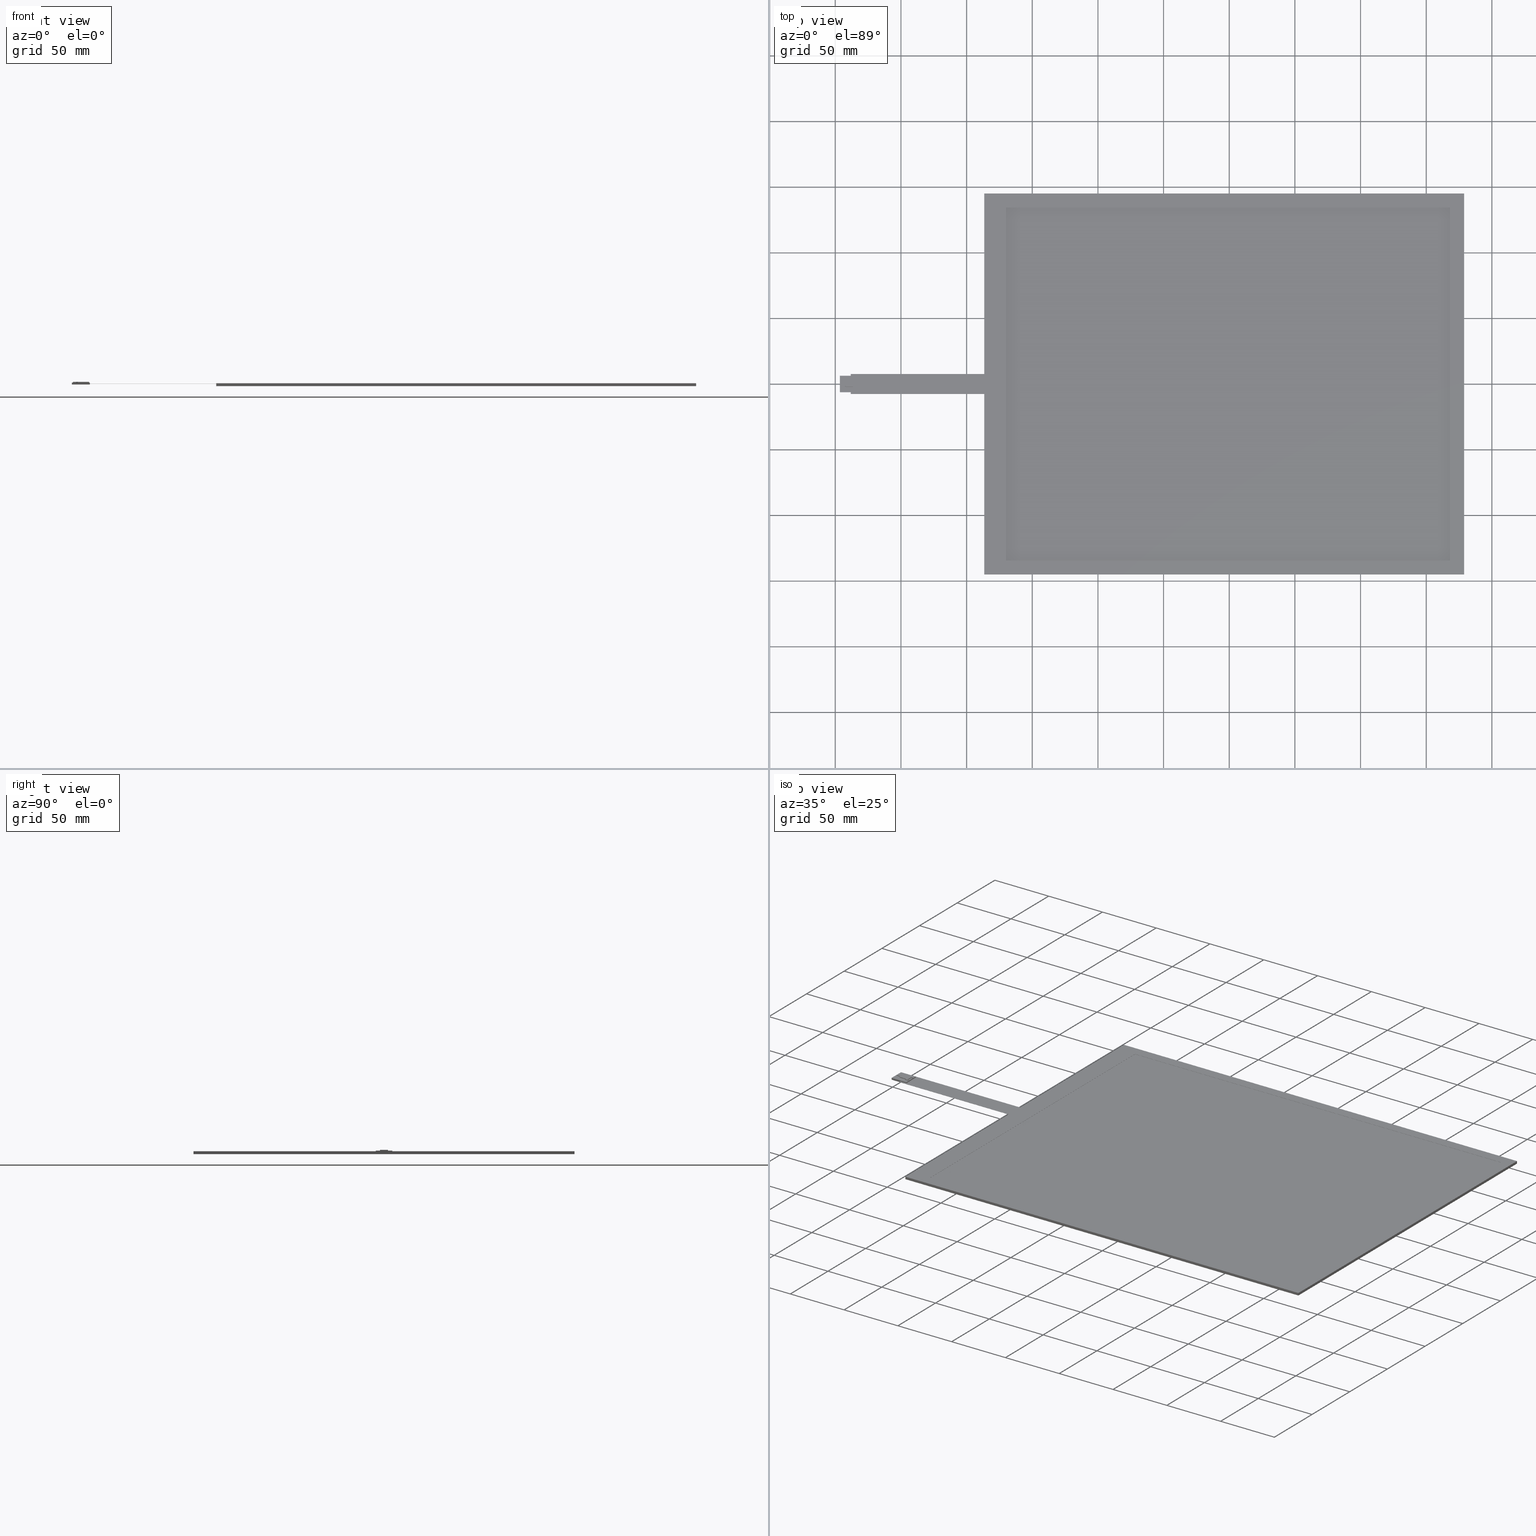
[diagram: canonical four-view strip — front | top / right | iso, engineering-drawing reading convention]
A machine part, canonical four-view strip (front | top / right | iso — engineering-drawing reading convention). The complete STEP part file that produces these views, byte-faithful:
ISO-10303-21;
HEADER;
/* Generated by software containing ST-Developer
 * from STEP Tools, Inc. (www.steptools.com) 
 */

FILE_DESCRIPTION(
/* description */ (''),
/* implementation_level */ '2;1');

FILE_NAME(
/* name */ 
'\\\\172.16.4.5\\\X2\65B06280885390E8\X0\$\\03 \X2\8A2D8A0830C730FC30BF\X0\\\
\X2\62B56297819C\X0\\\\X2\6A196E9654C1\X0\\\13. HP\X2\752856F39762\X0\\\
7, FST\\3D\X2\30C730FC30BF\X0\\\FST-T170C110A\\FST-T170C110A.stp',
/* time_stamp */ '2023-08-09T15:37:27+09:00',
/* author */ ('n-hirata'),
/* organization */ (''),
/* preprocessor_version */ 'ST-DEVELOPER v18',
/* originating_system */ 'Autodesk Inventor 2020',
/* authorisation */ '');

FILE_SCHEMA (('AUTOMOTIVE_DESIGN { 1 0 10303 214 3 1 1 }'));
ENDSEC;

DATA;
#10=MECHANICAL_DESIGN_GEOMETRIC_PRESENTATION_REPRESENTATION('',(#37,#38,
#39,#40,#41,#42,#43,#44,#45,#46,#47,#48,#49,#50,#51,#52,#53,#54,#55,#56,
#57),#1425);
#11=GEOMETRICALLY_BOUNDED_WIREFRAME_SHAPE_REPRESENTATION('',(#12,#13),#1424);
#12=GEOMETRIC_CURVE_SET('\X2\30B930B130C330C1\X0\1',(#17,#18,#19,#20,#21,
#22,#23,#24,#25,#26));
#13=GEOMETRIC_CURVE_SET('\X2\30B930B130C330C1\X0\2',(#27,#28,#29,#30,#31,
#32,#33,#34,#35,#36));
#14=SHAPE_REPRESENTATION_RELATIONSHIP('SRR','None',#1432,#16);
#15=SHAPE_REPRESENTATION_RELATIONSHIP('SRR','None',#1432,#11);
#16=ADVANCED_BREP_SHAPE_REPRESENTATION('',(#58),#1424);
#17=POLYLINE('',(#1382,#1383));
#18=POLYLINE('',(#1384,#1385));
#19=POLYLINE('',(#1386,#1387));
#20=POLYLINE('',(#1388,#1389));
#21=POLYLINE('',(#1390,#1391));
#22=POLYLINE('',(#1392,#1393));
#23=POLYLINE('',(#1394,#1395));
#24=POLYLINE('',(#1396,#1397));
#25=POLYLINE('',(#1398,#1399));
#26=POLYLINE('',(#1400,#1401));
#27=POLYLINE('',(#1402,#1403));
#28=POLYLINE('',(#1404,#1405));
#29=POLYLINE('',(#1406,#1407));
#30=POLYLINE('',(#1408,#1409));
#31=POLYLINE('',(#1410,#1411));
#32=POLYLINE('',(#1412,#1413));
#33=POLYLINE('',(#1414,#1415));
#34=POLYLINE('',(#1416,#1417));
#35=POLYLINE('',(#1418,#1419));
#36=POLYLINE('',(#1420,#1421));
#37=STYLED_ITEM('',(#1441),#58);
#38=STYLED_ITEM('',(#1442),#17);
#39=STYLED_ITEM('',(#1442),#18);
#40=STYLED_ITEM('',(#1443),#19);
#41=STYLED_ITEM('',(#1443),#20);
#42=STYLED_ITEM('',(#1443),#21);
#43=STYLED_ITEM('',(#1443),#22);
#44=STYLED_ITEM('',(#1443),#23);
#45=STYLED_ITEM('',(#1443),#24);
#46=STYLED_ITEM('',(#1443),#25);
#47=STYLED_ITEM('',(#1443),#26);
#48=STYLED_ITEM('',(#1443),#27);
#49=STYLED_ITEM('',(#1443),#28);
#50=STYLED_ITEM('',(#1443),#29);
#51=STYLED_ITEM('',(#1443),#30);
#52=STYLED_ITEM('',(#1442),#31);
#53=STYLED_ITEM('',(#1442),#32);
#54=STYLED_ITEM('',(#1443),#33);
#55=STYLED_ITEM('',(#1443),#34);
#56=STYLED_ITEM('',(#1443),#35);
#57=STYLED_ITEM('',(#1443),#36);
#58=MANIFOLD_SOLID_BREP('\X2\30BD30EA30C330C9\X0\1',#883);
#59=FACE_BOUND('',#131,.T.);
#60=FACE_BOUND('',#147,.T.);
#61=FACE_BOUND('',#149,.T.);
#62=FACE_OUTER_BOUND('',#105,.T.);
#63=FACE_OUTER_BOUND('',#106,.T.);
#64=FACE_OUTER_BOUND('',#107,.T.);
#65=FACE_OUTER_BOUND('',#108,.T.);
#66=FACE_OUTER_BOUND('',#109,.T.);
#67=FACE_OUTER_BOUND('',#110,.T.);
#68=FACE_OUTER_BOUND('',#111,.T.);
#69=FACE_OUTER_BOUND('',#112,.T.);
#70=FACE_OUTER_BOUND('',#113,.T.);
#71=FACE_OUTER_BOUND('',#114,.T.);
#72=FACE_OUTER_BOUND('',#115,.T.);
#73=FACE_OUTER_BOUND('',#116,.T.);
#74=FACE_OUTER_BOUND('',#117,.T.);
#75=FACE_OUTER_BOUND('',#118,.T.);
#76=FACE_OUTER_BOUND('',#119,.T.);
#77=FACE_OUTER_BOUND('',#120,.T.);
#78=FACE_OUTER_BOUND('',#121,.T.);
#79=FACE_OUTER_BOUND('',#122,.T.);
#80=FACE_OUTER_BOUND('',#123,.T.);
#81=FACE_OUTER_BOUND('',#124,.T.);
#82=FACE_OUTER_BOUND('',#125,.T.);
#83=FACE_OUTER_BOUND('',#126,.T.);
#84=FACE_OUTER_BOUND('',#127,.T.);
#85=FACE_OUTER_BOUND('',#128,.T.);
#86=FACE_OUTER_BOUND('',#129,.T.);
#87=FACE_OUTER_BOUND('',#130,.T.);
#88=FACE_OUTER_BOUND('',#132,.T.);
#89=FACE_OUTER_BOUND('',#133,.T.);
#90=FACE_OUTER_BOUND('',#134,.T.);
#91=FACE_OUTER_BOUND('',#135,.T.);
#92=FACE_OUTER_BOUND('',#136,.T.);
#93=FACE_OUTER_BOUND('',#137,.T.);
#94=FACE_OUTER_BOUND('',#138,.T.);
#95=FACE_OUTER_BOUND('',#139,.T.);
#96=FACE_OUTER_BOUND('',#140,.T.);
#97=FACE_OUTER_BOUND('',#141,.T.);
#98=FACE_OUTER_BOUND('',#142,.T.);
#99=FACE_OUTER_BOUND('',#143,.T.);
#100=FACE_OUTER_BOUND('',#144,.T.);
#101=FACE_OUTER_BOUND('',#145,.T.);
#102=FACE_OUTER_BOUND('',#146,.T.);
#103=FACE_OUTER_BOUND('',#148,.T.);
#104=FACE_OUTER_BOUND('',#150,.T.);
#105=EDGE_LOOP('',(#569,#570,#571,#572));
#106=EDGE_LOOP('',(#573,#574,#575,#576));
#107=EDGE_LOOP('',(#577,#578,#579,#580));
#108=EDGE_LOOP('',(#581,#582,#583,#584));
#109=EDGE_LOOP('',(#585,#586,#587,#588));
#110=EDGE_LOOP('',(#589,#590,#591,#592));
#111=EDGE_LOOP('',(#593,#594,#595,#596));
#112=EDGE_LOOP('',(#597,#598,#599,#600));
#113=EDGE_LOOP('',(#601,#602,#603,#604));
#114=EDGE_LOOP('',(#605,#606,#607,#608));
#115=EDGE_LOOP('',(#609,#610,#611,#612));
#116=EDGE_LOOP('',(#613,#614,#615,#616));
#117=EDGE_LOOP('',(#617,#618,#619,#620));
#118=EDGE_LOOP('',(#621,#622,#623,#624));
#119=EDGE_LOOP('',(#625,#626,#627,#628));
#120=EDGE_LOOP('',(#629,#630,#631,#632));
#121=EDGE_LOOP('',(#633,#634,#635,#636));
#122=EDGE_LOOP('',(#637,#638,#639,#640));
#123=EDGE_LOOP('',(#641,#642,#643,#644,#645,#646,#647,#648,#649,#650,#651,
#652,#653,#654,#655,#656,#657,#658));
#124=EDGE_LOOP('',(#659,#660,#661,#662));
#125=EDGE_LOOP('',(#663,#664,#665,#666));
#126=EDGE_LOOP('',(#667,#668,#669,#670,#671,#672,#673,#674));
#127=EDGE_LOOP('',(#675,#676,#677,#678));
#128=EDGE_LOOP('',(#679,#680,#681,#682,#683,#684,#685,#686));
#129=EDGE_LOOP('',(#687,#688,#689,#690));
#130=EDGE_LOOP('',(#691,#692,#693,#694));
#131=EDGE_LOOP('',(#695,#696,#697,#698,#699,#700,#701,#702,#703,#704,#705,
#706,#707,#708,#709,#710,#711,#712));
#132=EDGE_LOOP('',(#713,#714,#715,#716,#717,#718,#719,#720));
#133=EDGE_LOOP('',(#721,#722,#723,#724));
#134=EDGE_LOOP('',(#725,#726,#727,#728));
#135=EDGE_LOOP('',(#729,#730,#731,#732));
#136=EDGE_LOOP('',(#733,#734,#735,#736));
#137=EDGE_LOOP('',(#737,#738,#739,#740,#741,#742,#743,#744));
#138=EDGE_LOOP('',(#745,#746,#747,#748));
#139=EDGE_LOOP('',(#749,#750,#751,#752));
#140=EDGE_LOOP('',(#753,#754,#755,#756));
#141=EDGE_LOOP('',(#757,#758,#759,#760));
#142=EDGE_LOOP('',(#761,#762,#763,#764));
#143=EDGE_LOOP('',(#765,#766,#767,#768));
#144=EDGE_LOOP('',(#769,#770,#771,#772));
#145=EDGE_LOOP('',(#773,#774,#775,#776));
#146=EDGE_LOOP('',(#777,#778,#779,#780));
#147=EDGE_LOOP('',(#781,#782,#783,#784));
#148=EDGE_LOOP('',(#785,#786,#787,#788));
#149=EDGE_LOOP('',(#789,#790,#791,#792));
#150=EDGE_LOOP('',(#793,#794,#795,#796));
#151=LINE('',#1152,#265);
#152=LINE('',#1154,#266);
#153=LINE('',#1156,#267);
#154=LINE('',#1157,#268);
#155=LINE('',#1160,#269);
#156=LINE('',#1162,#270);
#157=LINE('',#1163,#271);
#158=LINE('',#1166,#272);
#159=LINE('',#1168,#273);
#160=LINE('',#1169,#274);
#161=LINE('',#1172,#275);
#162=LINE('',#1174,#276);
#163=LINE('',#1175,#277);
#164=LINE('',#1178,#278);
#165=LINE('',#1180,#279);
#166=LINE('',#1181,#280);
#167=LINE('',#1184,#281);
#168=LINE('',#1186,#282);
#169=LINE('',#1187,#283);
#170=LINE('',#1190,#284);
#171=LINE('',#1192,#285);
#172=LINE('',#1193,#286);
#173=LINE('',#1196,#287);
#174=LINE('',#1198,#288);
#175=LINE('',#1199,#289);
#176=LINE('',#1202,#290);
#177=LINE('',#1204,#291);
#178=LINE('',#1205,#292);
#179=LINE('',#1208,#293);
#180=LINE('',#1210,#294);
#181=LINE('',#1211,#295);
#182=LINE('',#1214,#296);
#183=LINE('',#1216,#297);
#184=LINE('',#1217,#298);
#185=LINE('',#1220,#299);
#186=LINE('',#1222,#300);
#187=LINE('',#1223,#301);
#188=LINE('',#1226,#302);
#189=LINE('',#1228,#303);
#190=LINE('',#1229,#304);
#191=LINE('',#1232,#305);
#192=LINE('',#1234,#306);
#193=LINE('',#1235,#307);
#194=LINE('',#1238,#308);
#195=LINE('',#1240,#309);
#196=LINE('',#1241,#310);
#197=LINE('',#1244,#311);
#198=LINE('',#1246,#312);
#199=LINE('',#1247,#313);
#200=LINE('',#1250,#314);
#201=LINE('',#1252,#315);
#202=LINE('',#1253,#316);
#203=LINE('',#1255,#317);
#204=LINE('',#1256,#318);
#205=LINE('',#1261,#319);
#206=LINE('',#1263,#320);
#207=LINE('',#1265,#321);
#208=LINE('',#1266,#322);
#209=LINE('',#1270,#323);
#210=LINE('',#1272,#324);
#211=LINE('',#1274,#325);
#212=LINE('',#1275,#326);
#213=LINE('',#1278,#327);
#214=LINE('',#1280,#328);
#215=LINE('',#1281,#329);
#216=LINE('',#1283,#330);
#217=LINE('',#1285,#331);
#218=LINE('',#1286,#332);
#219=LINE('',#1289,#333);
#220=LINE('',#1290,#334);
#221=LINE('',#1293,#335);
#222=LINE('',#1295,#336);
#223=LINE('',#1296,#337);
#224=LINE('',#1298,#338);
#225=LINE('',#1299,#339);
#226=LINE('',#1301,#340);
#227=LINE('',#1305,#341);
#228=LINE('',#1307,#342);
#229=LINE('',#1309,#343);
#230=LINE('',#1311,#344);
#231=LINE('',#1312,#345);
#232=LINE('',#1315,#346);
#233=LINE('',#1316,#347);
#234=LINE('',#1319,#348);
#235=LINE('',#1320,#349);
#236=LINE('',#1323,#350);
#237=LINE('',#1324,#351);
#238=LINE('',#1327,#352);
#239=LINE('',#1328,#353);
#240=LINE('',#1330,#354);
#241=LINE('',#1334,#355);
#242=LINE('',#1336,#356);
#243=LINE('',#1338,#357);
#244=LINE('',#1339,#358);
#245=LINE('',#1342,#359);
#246=LINE('',#1344,#360);
#247=LINE('',#1345,#361);
#248=LINE('',#1348,#362);
#249=LINE('',#1350,#363);
#250=LINE('',#1351,#364);
#251=LINE('',#1353,#365);
#252=LINE('',#1354,#366);
#253=LINE('',#1359,#367);
#254=LINE('',#1361,#368);
#255=LINE('',#1363,#369);
#256=LINE('',#1364,#370);
#257=LINE('',#1367,#371);
#258=LINE('',#1369,#372);
#259=LINE('',#1370,#373);
#260=LINE('',#1373,#374);
#261=LINE('',#1375,#375);
#262=LINE('',#1376,#376);
#263=LINE('',#1378,#377);
#264=LINE('',#1379,#378);
#265=VECTOR('',#950,10.);
#266=VECTOR('',#951,10.);
#267=VECTOR('',#952,10.);
#268=VECTOR('',#953,10.);
#269=VECTOR('',#956,10.);
#270=VECTOR('',#957,10.);
#271=VECTOR('',#958,10.);
#272=VECTOR('',#961,10.);
#273=VECTOR('',#962,10.);
#274=VECTOR('',#963,10.);
#275=VECTOR('',#966,10.);
#276=VECTOR('',#967,10.);
#277=VECTOR('',#968,10.);
#278=VECTOR('',#971,10.);
#279=VECTOR('',#972,10.);
#280=VECTOR('',#973,10.);
#281=VECTOR('',#976,10.);
#282=VECTOR('',#977,10.);
#283=VECTOR('',#978,10.);
#284=VECTOR('',#981,10.);
#285=VECTOR('',#982,10.);
#286=VECTOR('',#983,10.);
#287=VECTOR('',#986,10.);
#288=VECTOR('',#987,10.);
#289=VECTOR('',#988,10.);
#290=VECTOR('',#991,10.);
#291=VECTOR('',#992,10.);
#292=VECTOR('',#993,10.);
#293=VECTOR('',#996,10.);
#294=VECTOR('',#997,10.);
#295=VECTOR('',#998,10.);
#296=VECTOR('',#1001,10.);
#297=VECTOR('',#1002,10.);
#298=VECTOR('',#1003,10.);
#299=VECTOR('',#1006,10.);
#300=VECTOR('',#1007,10.);
#301=VECTOR('',#1008,10.);
#302=VECTOR('',#1011,10.);
#303=VECTOR('',#1012,10.);
#304=VECTOR('',#1013,10.);
#305=VECTOR('',#1016,10.);
#306=VECTOR('',#1017,10.);
#307=VECTOR('',#1018,10.);
#308=VECTOR('',#1021,10.);
#309=VECTOR('',#1022,10.);
#310=VECTOR('',#1023,10.);
#311=VECTOR('',#1026,10.);
#312=VECTOR('',#1027,10.);
#313=VECTOR('',#1028,10.);
#314=VECTOR('',#1031,10.);
#315=VECTOR('',#1032,10.);
#316=VECTOR('',#1033,10.);
#317=VECTOR('',#1036,10.);
#318=VECTOR('',#1037,10.);
#319=VECTOR('',#1042,10.);
#320=VECTOR('',#1043,10.);
#321=VECTOR('',#1044,10.);
#322=VECTOR('',#1045,10.);
#323=VECTOR('',#1048,10.);
#324=VECTOR('',#1049,10.);
#325=VECTOR('',#1050,10.);
#326=VECTOR('',#1051,10.);
#327=VECTOR('',#1054,10.);
#328=VECTOR('',#1055,10.);
#329=VECTOR('',#1056,10.);
#330=VECTOR('',#1057,10.);
#331=VECTOR('',#1058,10.);
#332=VECTOR('',#1059,10.);
#333=VECTOR('',#1062,10.);
#334=VECTOR('',#1063,10.);
#335=VECTOR('',#1066,10.);
#336=VECTOR('',#1067,10.);
#337=VECTOR('',#1068,10.);
#338=VECTOR('',#1069,10.);
#339=VECTOR('',#1070,10.);
#340=VECTOR('',#1073,10.);
#341=VECTOR('',#1078,10.);
#342=VECTOR('',#1079,10.);
#343=VECTOR('',#1080,10.);
#344=VECTOR('',#1081,10.);
#345=VECTOR('',#1082,10.);
#346=VECTOR('',#1085,10.);
#347=VECTOR('',#1086,10.);
#348=VECTOR('',#1089,10.);
#349=VECTOR('',#1090,10.);
#350=VECTOR('',#1093,10.);
#351=VECTOR('',#1094,10.);
#352=VECTOR('',#1097,10.);
#353=VECTOR('',#1098,10.);
#354=VECTOR('',#1101,10.);
#355=VECTOR('',#1104,10.);
#356=VECTOR('',#1105,10.);
#357=VECTOR('',#1106,10.);
#358=VECTOR('',#1107,10.);
#359=VECTOR('',#1110,10.);
#360=VECTOR('',#1111,10.);
#361=VECTOR('',#1112,10.);
#362=VECTOR('',#1115,10.);
#363=VECTOR('',#1116,10.);
#364=VECTOR('',#1117,10.);
#365=VECTOR('',#1120,10.);
#366=VECTOR('',#1121,10.);
#367=VECTOR('',#1126,10.);
#368=VECTOR('',#1127,10.);
#369=VECTOR('',#1128,10.);
#370=VECTOR('',#1129,10.);
#371=VECTOR('',#1132,10.);
#372=VECTOR('',#1133,10.);
#373=VECTOR('',#1134,10.);
#374=VECTOR('',#1137,10.);
#375=VECTOR('',#1138,10.);
#376=VECTOR('',#1139,10.);
#377=VECTOR('',#1142,10.);
#378=VECTOR('',#1143,10.);
#379=VERTEX_POINT('',#1150);
#380=VERTEX_POINT('',#1151);
#381=VERTEX_POINT('',#1153);
#382=VERTEX_POINT('',#1155);
#383=VERTEX_POINT('',#1159);
#384=VERTEX_POINT('',#1161);
#385=VERTEX_POINT('',#1165);
#386=VERTEX_POINT('',#1167);
#387=VERTEX_POINT('',#1171);
#388=VERTEX_POINT('',#1173);
#389=VERTEX_POINT('',#1177);
#390=VERTEX_POINT('',#1179);
#391=VERTEX_POINT('',#1183);
#392=VERTEX_POINT('',#1185);
#393=VERTEX_POINT('',#1189);
#394=VERTEX_POINT('',#1191);
#395=VERTEX_POINT('',#1195);
#396=VERTEX_POINT('',#1197);
#397=VERTEX_POINT('',#1201);
#398=VERTEX_POINT('',#1203);
#399=VERTEX_POINT('',#1207);
#400=VERTEX_POINT('',#1209);
#401=VERTEX_POINT('',#1213);
#402=VERTEX_POINT('',#1215);
#403=VERTEX_POINT('',#1219);
#404=VERTEX_POINT('',#1221);
#405=VERTEX_POINT('',#1225);
#406=VERTEX_POINT('',#1227);
#407=VERTEX_POINT('',#1231);
#408=VERTEX_POINT('',#1233);
#409=VERTEX_POINT('',#1237);
#410=VERTEX_POINT('',#1239);
#411=VERTEX_POINT('',#1243);
#412=VERTEX_POINT('',#1245);
#413=VERTEX_POINT('',#1249);
#414=VERTEX_POINT('',#1251);
#415=VERTEX_POINT('',#1259);
#416=VERTEX_POINT('',#1260);
#417=VERTEX_POINT('',#1262);
#418=VERTEX_POINT('',#1264);
#419=VERTEX_POINT('',#1268);
#420=VERTEX_POINT('',#1269);
#421=VERTEX_POINT('',#1271);
#422=VERTEX_POINT('',#1273);
#423=VERTEX_POINT('',#1277);
#424=VERTEX_POINT('',#1279);
#425=VERTEX_POINT('',#1282);
#426=VERTEX_POINT('',#1284);
#427=VERTEX_POINT('',#1288);
#428=VERTEX_POINT('',#1292);
#429=VERTEX_POINT('',#1294);
#430=VERTEX_POINT('',#1297);
#431=VERTEX_POINT('',#1304);
#432=VERTEX_POINT('',#1306);
#433=VERTEX_POINT('',#1308);
#434=VERTEX_POINT('',#1310);
#435=VERTEX_POINT('',#1314);
#436=VERTEX_POINT('',#1318);
#437=VERTEX_POINT('',#1322);
#438=VERTEX_POINT('',#1326);
#439=VERTEX_POINT('',#1332);
#440=VERTEX_POINT('',#1333);
#441=VERTEX_POINT('',#1335);
#442=VERTEX_POINT('',#1337);
#443=VERTEX_POINT('',#1341);
#444=VERTEX_POINT('',#1343);
#445=VERTEX_POINT('',#1347);
#446=VERTEX_POINT('',#1349);
#447=VERTEX_POINT('',#1357);
#448=VERTEX_POINT('',#1358);
#449=VERTEX_POINT('',#1360);
#450=VERTEX_POINT('',#1362);
#451=VERTEX_POINT('',#1366);
#452=VERTEX_POINT('',#1368);
#453=VERTEX_POINT('',#1372);
#454=VERTEX_POINT('',#1374);
#455=EDGE_CURVE('',#379,#380,#151,.T.);
#456=EDGE_CURVE('',#379,#381,#152,.T.);
#457=EDGE_CURVE('',#382,#381,#153,.T.);
#458=EDGE_CURVE('',#380,#382,#154,.T.);
#459=EDGE_CURVE('',#380,#383,#155,.T.);
#460=EDGE_CURVE('',#384,#382,#156,.T.);
#461=EDGE_CURVE('',#383,#384,#157,.T.);
#462=EDGE_CURVE('',#383,#385,#158,.T.);
#463=EDGE_CURVE('',#386,#384,#159,.T.);
#464=EDGE_CURVE('',#385,#386,#160,.T.);
#465=EDGE_CURVE('',#385,#387,#161,.T.);
#466=EDGE_CURVE('',#388,#386,#162,.T.);
#467=EDGE_CURVE('',#387,#388,#163,.T.);
#468=EDGE_CURVE('',#387,#389,#164,.T.);
#469=EDGE_CURVE('',#390,#388,#165,.T.);
#470=EDGE_CURVE('',#389,#390,#166,.T.);
#471=EDGE_CURVE('',#389,#391,#167,.T.);
#472=EDGE_CURVE('',#392,#390,#168,.T.);
#473=EDGE_CURVE('',#391,#392,#169,.T.);
#474=EDGE_CURVE('',#391,#393,#170,.T.);
#475=EDGE_CURVE('',#394,#392,#171,.T.);
#476=EDGE_CURVE('',#393,#394,#172,.T.);
#477=EDGE_CURVE('',#393,#395,#173,.T.);
#478=EDGE_CURVE('',#396,#394,#174,.T.);
#479=EDGE_CURVE('',#395,#396,#175,.T.);
#480=EDGE_CURVE('',#395,#397,#176,.T.);
#481=EDGE_CURVE('',#398,#396,#177,.T.);
#482=EDGE_CURVE('',#397,#398,#178,.T.);
#483=EDGE_CURVE('',#397,#399,#179,.T.);
#484=EDGE_CURVE('',#400,#398,#180,.T.);
#485=EDGE_CURVE('',#399,#400,#181,.T.);
#486=EDGE_CURVE('',#399,#401,#182,.T.);
#487=EDGE_CURVE('',#402,#400,#183,.T.);
#488=EDGE_CURVE('',#401,#402,#184,.T.);
#489=EDGE_CURVE('',#401,#403,#185,.T.);
#490=EDGE_CURVE('',#404,#402,#186,.T.);
#491=EDGE_CURVE('',#403,#404,#187,.T.);
#492=EDGE_CURVE('',#403,#405,#188,.T.);
#493=EDGE_CURVE('',#406,#404,#189,.T.);
#494=EDGE_CURVE('',#405,#406,#190,.T.);
#495=EDGE_CURVE('',#405,#407,#191,.T.);
#496=EDGE_CURVE('',#408,#406,#192,.T.);
#497=EDGE_CURVE('',#407,#408,#193,.T.);
#498=EDGE_CURVE('',#407,#409,#194,.T.);
#499=EDGE_CURVE('',#410,#408,#195,.T.);
#500=EDGE_CURVE('',#409,#410,#196,.T.);
#501=EDGE_CURVE('',#409,#411,#197,.T.);
#502=EDGE_CURVE('',#412,#410,#198,.T.);
#503=EDGE_CURVE('',#411,#412,#199,.T.);
#504=EDGE_CURVE('',#411,#413,#200,.T.);
#505=EDGE_CURVE('',#414,#412,#201,.T.);
#506=EDGE_CURVE('',#413,#414,#202,.T.);
#507=EDGE_CURVE('',#413,#379,#203,.T.);
#508=EDGE_CURVE('',#381,#414,#204,.T.);
#509=EDGE_CURVE('',#415,#416,#205,.T.);
#510=EDGE_CURVE('',#415,#417,#206,.T.);
#511=EDGE_CURVE('',#418,#417,#207,.T.);
#512=EDGE_CURVE('',#418,#416,#208,.T.);
#513=EDGE_CURVE('',#419,#420,#209,.T.);
#514=EDGE_CURVE('',#419,#421,#210,.T.);
#515=EDGE_CURVE('',#422,#421,#211,.T.);
#516=EDGE_CURVE('',#422,#420,#212,.T.);
#517=EDGE_CURVE('',#423,#419,#213,.T.);
#518=EDGE_CURVE('',#424,#423,#214,.T.);
#519=EDGE_CURVE('',#416,#424,#215,.T.);
#520=EDGE_CURVE('',#425,#418,#216,.T.);
#521=EDGE_CURVE('',#425,#426,#217,.T.);
#522=EDGE_CURVE('',#421,#426,#218,.T.);
#523=EDGE_CURVE('',#417,#427,#219,.T.);
#524=EDGE_CURVE('',#427,#425,#220,.T.);
#525=EDGE_CURVE('',#420,#428,#221,.T.);
#526=EDGE_CURVE('',#429,#422,#222,.T.);
#527=EDGE_CURVE('',#427,#429,#223,.T.);
#528=EDGE_CURVE('',#430,#415,#224,.T.);
#529=EDGE_CURVE('',#428,#430,#225,.T.);
#530=EDGE_CURVE('',#426,#429,#226,.T.);
#531=EDGE_CURVE('',#424,#431,#227,.T.);
#532=EDGE_CURVE('',#431,#432,#228,.T.);
#533=EDGE_CURVE('',#433,#432,#229,.T.);
#534=EDGE_CURVE('',#433,#434,#230,.T.);
#535=EDGE_CURVE('',#434,#430,#231,.T.);
#536=EDGE_CURVE('',#435,#423,#232,.T.);
#537=EDGE_CURVE('',#435,#431,#233,.T.);
#538=EDGE_CURVE('',#436,#434,#234,.T.);
#539=EDGE_CURVE('',#428,#436,#235,.T.);
#540=EDGE_CURVE('',#437,#435,#236,.T.);
#541=EDGE_CURVE('',#432,#437,#237,.T.);
#542=EDGE_CURVE('',#436,#438,#238,.T.);
#543=EDGE_CURVE('',#438,#433,#239,.T.);
#544=EDGE_CURVE('',#437,#438,#240,.T.);
#545=EDGE_CURVE('',#439,#440,#241,.T.);
#546=EDGE_CURVE('',#439,#441,#242,.T.);
#547=EDGE_CURVE('',#441,#442,#243,.T.);
#548=EDGE_CURVE('',#440,#442,#244,.T.);
#549=EDGE_CURVE('',#443,#439,#245,.T.);
#550=EDGE_CURVE('',#443,#444,#246,.T.);
#551=EDGE_CURVE('',#444,#441,#247,.T.);
#552=EDGE_CURVE('',#445,#443,#248,.T.);
#553=EDGE_CURVE('',#445,#446,#249,.T.);
#554=EDGE_CURVE('',#446,#444,#250,.T.);
#555=EDGE_CURVE('',#440,#445,#251,.T.);
#556=EDGE_CURVE('',#442,#446,#252,.T.);
#557=EDGE_CURVE('',#447,#448,#253,.T.);
#558=EDGE_CURVE('',#447,#449,#254,.T.);
#559=EDGE_CURVE('',#450,#449,#255,.T.);
#560=EDGE_CURVE('',#448,#450,#256,.T.);
#561=EDGE_CURVE('',#448,#451,#257,.T.);
#562=EDGE_CURVE('',#452,#450,#258,.T.);
#563=EDGE_CURVE('',#451,#452,#259,.T.);
#564=EDGE_CURVE('',#451,#453,#260,.T.);
#565=EDGE_CURVE('',#454,#452,#261,.T.);
#566=EDGE_CURVE('',#453,#454,#262,.T.);
#567=EDGE_CURVE('',#453,#447,#263,.T.);
#568=EDGE_CURVE('',#449,#454,#264,.T.);
#569=ORIENTED_EDGE('',*,*,#455,.F.);
#570=ORIENTED_EDGE('',*,*,#456,.T.);
#571=ORIENTED_EDGE('',*,*,#457,.F.);
#572=ORIENTED_EDGE('',*,*,#458,.F.);
#573=ORIENTED_EDGE('',*,*,#459,.F.);
#574=ORIENTED_EDGE('',*,*,#458,.T.);
#575=ORIENTED_EDGE('',*,*,#460,.F.);
#576=ORIENTED_EDGE('',*,*,#461,.F.);
#577=ORIENTED_EDGE('',*,*,#462,.F.);
#578=ORIENTED_EDGE('',*,*,#461,.T.);
#579=ORIENTED_EDGE('',*,*,#463,.F.);
#580=ORIENTED_EDGE('',*,*,#464,.F.);
#581=ORIENTED_EDGE('',*,*,#465,.F.);
#582=ORIENTED_EDGE('',*,*,#464,.T.);
#583=ORIENTED_EDGE('',*,*,#466,.F.);
#584=ORIENTED_EDGE('',*,*,#467,.F.);
#585=ORIENTED_EDGE('',*,*,#468,.F.);
#586=ORIENTED_EDGE('',*,*,#467,.T.);
#587=ORIENTED_EDGE('',*,*,#469,.F.);
#588=ORIENTED_EDGE('',*,*,#470,.F.);
#589=ORIENTED_EDGE('',*,*,#471,.F.);
#590=ORIENTED_EDGE('',*,*,#470,.T.);
#591=ORIENTED_EDGE('',*,*,#472,.F.);
#592=ORIENTED_EDGE('',*,*,#473,.F.);
#593=ORIENTED_EDGE('',*,*,#474,.F.);
#594=ORIENTED_EDGE('',*,*,#473,.T.);
#595=ORIENTED_EDGE('',*,*,#475,.F.);
#596=ORIENTED_EDGE('',*,*,#476,.F.);
#597=ORIENTED_EDGE('',*,*,#477,.F.);
#598=ORIENTED_EDGE('',*,*,#476,.T.);
#599=ORIENTED_EDGE('',*,*,#478,.F.);
#600=ORIENTED_EDGE('',*,*,#479,.F.);
#601=ORIENTED_EDGE('',*,*,#480,.F.);
#602=ORIENTED_EDGE('',*,*,#479,.T.);
#603=ORIENTED_EDGE('',*,*,#481,.F.);
#604=ORIENTED_EDGE('',*,*,#482,.F.);
#605=ORIENTED_EDGE('',*,*,#483,.F.);
#606=ORIENTED_EDGE('',*,*,#482,.T.);
#607=ORIENTED_EDGE('',*,*,#484,.F.);
#608=ORIENTED_EDGE('',*,*,#485,.F.);
#609=ORIENTED_EDGE('',*,*,#486,.F.);
#610=ORIENTED_EDGE('',*,*,#485,.T.);
#611=ORIENTED_EDGE('',*,*,#487,.F.);
#612=ORIENTED_EDGE('',*,*,#488,.F.);
#613=ORIENTED_EDGE('',*,*,#489,.F.);
#614=ORIENTED_EDGE('',*,*,#488,.T.);
#615=ORIENTED_EDGE('',*,*,#490,.F.);
#616=ORIENTED_EDGE('',*,*,#491,.F.);
#617=ORIENTED_EDGE('',*,*,#492,.F.);
#618=ORIENTED_EDGE('',*,*,#491,.T.);
#619=ORIENTED_EDGE('',*,*,#493,.F.);
#620=ORIENTED_EDGE('',*,*,#494,.F.);
#621=ORIENTED_EDGE('',*,*,#495,.F.);
#622=ORIENTED_EDGE('',*,*,#494,.T.);
#623=ORIENTED_EDGE('',*,*,#496,.F.);
#624=ORIENTED_EDGE('',*,*,#497,.F.);
#625=ORIENTED_EDGE('',*,*,#498,.F.);
#626=ORIENTED_EDGE('',*,*,#497,.T.);
#627=ORIENTED_EDGE('',*,*,#499,.F.);
#628=ORIENTED_EDGE('',*,*,#500,.F.);
#629=ORIENTED_EDGE('',*,*,#501,.F.);
#630=ORIENTED_EDGE('',*,*,#500,.T.);
#631=ORIENTED_EDGE('',*,*,#502,.F.);
#632=ORIENTED_EDGE('',*,*,#503,.F.);
#633=ORIENTED_EDGE('',*,*,#504,.F.);
#634=ORIENTED_EDGE('',*,*,#503,.T.);
#635=ORIENTED_EDGE('',*,*,#505,.F.);
#636=ORIENTED_EDGE('',*,*,#506,.F.);
#637=ORIENTED_EDGE('',*,*,#507,.F.);
#638=ORIENTED_EDGE('',*,*,#506,.T.);
#639=ORIENTED_EDGE('',*,*,#508,.F.);
#640=ORIENTED_EDGE('',*,*,#456,.F.);
#641=ORIENTED_EDGE('',*,*,#508,.T.);
#642=ORIENTED_EDGE('',*,*,#505,.T.);
#643=ORIENTED_EDGE('',*,*,#502,.T.);
#644=ORIENTED_EDGE('',*,*,#499,.T.);
#645=ORIENTED_EDGE('',*,*,#496,.T.);
#646=ORIENTED_EDGE('',*,*,#493,.T.);
#647=ORIENTED_EDGE('',*,*,#490,.T.);
#648=ORIENTED_EDGE('',*,*,#487,.T.);
#649=ORIENTED_EDGE('',*,*,#484,.T.);
#650=ORIENTED_EDGE('',*,*,#481,.T.);
#651=ORIENTED_EDGE('',*,*,#478,.T.);
#652=ORIENTED_EDGE('',*,*,#475,.T.);
#653=ORIENTED_EDGE('',*,*,#472,.T.);
#654=ORIENTED_EDGE('',*,*,#469,.T.);
#655=ORIENTED_EDGE('',*,*,#466,.T.);
#656=ORIENTED_EDGE('',*,*,#463,.T.);
#657=ORIENTED_EDGE('',*,*,#460,.T.);
#658=ORIENTED_EDGE('',*,*,#457,.T.);
#659=ORIENTED_EDGE('',*,*,#509,.F.);
#660=ORIENTED_EDGE('',*,*,#510,.T.);
#661=ORIENTED_EDGE('',*,*,#511,.F.);
#662=ORIENTED_EDGE('',*,*,#512,.T.);
#663=ORIENTED_EDGE('',*,*,#513,.F.);
#664=ORIENTED_EDGE('',*,*,#514,.T.);
#665=ORIENTED_EDGE('',*,*,#515,.F.);
#666=ORIENTED_EDGE('',*,*,#516,.T.);
#667=ORIENTED_EDGE('',*,*,#517,.F.);
#668=ORIENTED_EDGE('',*,*,#518,.F.);
#669=ORIENTED_EDGE('',*,*,#519,.F.);
#670=ORIENTED_EDGE('',*,*,#512,.F.);
#671=ORIENTED_EDGE('',*,*,#520,.F.);
#672=ORIENTED_EDGE('',*,*,#521,.T.);
#673=ORIENTED_EDGE('',*,*,#522,.F.);
#674=ORIENTED_EDGE('',*,*,#514,.F.);
#675=ORIENTED_EDGE('',*,*,#511,.T.);
#676=ORIENTED_EDGE('',*,*,#523,.T.);
#677=ORIENTED_EDGE('',*,*,#524,.T.);
#678=ORIENTED_EDGE('',*,*,#520,.T.);
#679=ORIENTED_EDGE('',*,*,#525,.F.);
#680=ORIENTED_EDGE('',*,*,#516,.F.);
#681=ORIENTED_EDGE('',*,*,#526,.F.);
#682=ORIENTED_EDGE('',*,*,#527,.F.);
#683=ORIENTED_EDGE('',*,*,#523,.F.);
#684=ORIENTED_EDGE('',*,*,#510,.F.);
#685=ORIENTED_EDGE('',*,*,#528,.F.);
#686=ORIENTED_EDGE('',*,*,#529,.F.);
#687=ORIENTED_EDGE('',*,*,#527,.T.);
#688=ORIENTED_EDGE('',*,*,#530,.F.);
#689=ORIENTED_EDGE('',*,*,#521,.F.);
#690=ORIENTED_EDGE('',*,*,#524,.F.);
#691=ORIENTED_EDGE('',*,*,#515,.T.);
#692=ORIENTED_EDGE('',*,*,#522,.T.);
#693=ORIENTED_EDGE('',*,*,#530,.T.);
#694=ORIENTED_EDGE('',*,*,#526,.T.);
#695=ORIENTED_EDGE('',*,*,#455,.T.);
#696=ORIENTED_EDGE('',*,*,#459,.T.);
#697=ORIENTED_EDGE('',*,*,#462,.T.);
#698=ORIENTED_EDGE('',*,*,#465,.T.);
#699=ORIENTED_EDGE('',*,*,#468,.T.);
#700=ORIENTED_EDGE('',*,*,#471,.T.);
#701=ORIENTED_EDGE('',*,*,#474,.T.);
#702=ORIENTED_EDGE('',*,*,#477,.T.);
#703=ORIENTED_EDGE('',*,*,#480,.T.);
#704=ORIENTED_EDGE('',*,*,#483,.T.);
#705=ORIENTED_EDGE('',*,*,#486,.T.);
#706=ORIENTED_EDGE('',*,*,#489,.T.);
#707=ORIENTED_EDGE('',*,*,#492,.T.);
#708=ORIENTED_EDGE('',*,*,#495,.T.);
#709=ORIENTED_EDGE('',*,*,#498,.T.);
#710=ORIENTED_EDGE('',*,*,#501,.T.);
#711=ORIENTED_EDGE('',*,*,#504,.T.);
#712=ORIENTED_EDGE('',*,*,#507,.T.);
#713=ORIENTED_EDGE('',*,*,#528,.T.);
#714=ORIENTED_EDGE('',*,*,#509,.T.);
#715=ORIENTED_EDGE('',*,*,#519,.T.);
#716=ORIENTED_EDGE('',*,*,#531,.T.);
#717=ORIENTED_EDGE('',*,*,#532,.T.);
#718=ORIENTED_EDGE('',*,*,#533,.F.);
#719=ORIENTED_EDGE('',*,*,#534,.T.);
#720=ORIENTED_EDGE('',*,*,#535,.T.);
#721=ORIENTED_EDGE('',*,*,#518,.T.);
#722=ORIENTED_EDGE('',*,*,#536,.F.);
#723=ORIENTED_EDGE('',*,*,#537,.T.);
#724=ORIENTED_EDGE('',*,*,#531,.F.);
#725=ORIENTED_EDGE('',*,*,#529,.T.);
#726=ORIENTED_EDGE('',*,*,#535,.F.);
#727=ORIENTED_EDGE('',*,*,#538,.F.);
#728=ORIENTED_EDGE('',*,*,#539,.F.);
#729=ORIENTED_EDGE('',*,*,#540,.F.);
#730=ORIENTED_EDGE('',*,*,#541,.F.);
#731=ORIENTED_EDGE('',*,*,#532,.F.);
#732=ORIENTED_EDGE('',*,*,#537,.F.);
#733=ORIENTED_EDGE('',*,*,#542,.F.);
#734=ORIENTED_EDGE('',*,*,#538,.T.);
#735=ORIENTED_EDGE('',*,*,#534,.F.);
#736=ORIENTED_EDGE('',*,*,#543,.F.);
#737=ORIENTED_EDGE('',*,*,#525,.T.);
#738=ORIENTED_EDGE('',*,*,#539,.T.);
#739=ORIENTED_EDGE('',*,*,#542,.T.);
#740=ORIENTED_EDGE('',*,*,#544,.F.);
#741=ORIENTED_EDGE('',*,*,#540,.T.);
#742=ORIENTED_EDGE('',*,*,#536,.T.);
#743=ORIENTED_EDGE('',*,*,#517,.T.);
#744=ORIENTED_EDGE('',*,*,#513,.T.);
#745=ORIENTED_EDGE('',*,*,#545,.F.);
#746=ORIENTED_EDGE('',*,*,#546,.T.);
#747=ORIENTED_EDGE('',*,*,#547,.T.);
#748=ORIENTED_EDGE('',*,*,#548,.F.);
#749=ORIENTED_EDGE('',*,*,#549,.F.);
#750=ORIENTED_EDGE('',*,*,#550,.T.);
#751=ORIENTED_EDGE('',*,*,#551,.T.);
#752=ORIENTED_EDGE('',*,*,#546,.F.);
#753=ORIENTED_EDGE('',*,*,#552,.F.);
#754=ORIENTED_EDGE('',*,*,#553,.T.);
#755=ORIENTED_EDGE('',*,*,#554,.T.);
#756=ORIENTED_EDGE('',*,*,#550,.F.);
#757=ORIENTED_EDGE('',*,*,#555,.F.);
#758=ORIENTED_EDGE('',*,*,#548,.T.);
#759=ORIENTED_EDGE('',*,*,#556,.T.);
#760=ORIENTED_EDGE('',*,*,#553,.F.);
#761=ORIENTED_EDGE('',*,*,#556,.F.);
#762=ORIENTED_EDGE('',*,*,#547,.F.);
#763=ORIENTED_EDGE('',*,*,#551,.F.);
#764=ORIENTED_EDGE('',*,*,#554,.F.);
#765=ORIENTED_EDGE('',*,*,#557,.F.);
#766=ORIENTED_EDGE('',*,*,#558,.T.);
#767=ORIENTED_EDGE('',*,*,#559,.F.);
#768=ORIENTED_EDGE('',*,*,#560,.F.);
#769=ORIENTED_EDGE('',*,*,#561,.F.);
#770=ORIENTED_EDGE('',*,*,#560,.T.);
#771=ORIENTED_EDGE('',*,*,#562,.F.);
#772=ORIENTED_EDGE('',*,*,#563,.F.);
#773=ORIENTED_EDGE('',*,*,#564,.F.);
#774=ORIENTED_EDGE('',*,*,#563,.T.);
#775=ORIENTED_EDGE('',*,*,#565,.F.);
#776=ORIENTED_EDGE('',*,*,#566,.F.);
#777=ORIENTED_EDGE('',*,*,#567,.F.);
#778=ORIENTED_EDGE('',*,*,#566,.T.);
#779=ORIENTED_EDGE('',*,*,#568,.F.);
#780=ORIENTED_EDGE('',*,*,#558,.F.);
#781=ORIENTED_EDGE('',*,*,#543,.T.);
#782=ORIENTED_EDGE('',*,*,#533,.T.);
#783=ORIENTED_EDGE('',*,*,#541,.T.);
#784=ORIENTED_EDGE('',*,*,#544,.T.);
#785=ORIENTED_EDGE('',*,*,#567,.T.);
#786=ORIENTED_EDGE('',*,*,#557,.T.);
#787=ORIENTED_EDGE('',*,*,#561,.T.);
#788=ORIENTED_EDGE('',*,*,#564,.T.);
#789=ORIENTED_EDGE('',*,*,#545,.T.);
#790=ORIENTED_EDGE('',*,*,#555,.T.);
#791=ORIENTED_EDGE('',*,*,#552,.T.);
#792=ORIENTED_EDGE('',*,*,#549,.T.);
#793=ORIENTED_EDGE('',*,*,#568,.T.);
#794=ORIENTED_EDGE('',*,*,#565,.T.);
#795=ORIENTED_EDGE('',*,*,#562,.T.);
#796=ORIENTED_EDGE('',*,*,#559,.T.);
#797=PLANE('',#903);
#798=PLANE('',#904);
#799=PLANE('',#905);
#800=PLANE('',#906);
#801=PLANE('',#907);
#802=PLANE('',#908);
#803=PLANE('',#909);
#804=PLANE('',#910);
#805=PLANE('',#911);
#806=PLANE('',#912);
#807=PLANE('',#913);
#808=PLANE('',#914);
#809=PLANE('',#915);
#810=PLANE('',#916);
#811=PLANE('',#917);
#812=PLANE('',#918);
#813=PLANE('',#919);
#814=PLANE('',#920);
#815=PLANE('',#921);
#816=PLANE('',#922);
#817=PLANE('',#923);
#818=PLANE('',#924);
#819=PLANE('',#925);
#820=PLANE('',#926);
#821=PLANE('',#927);
#822=PLANE('',#928);
#823=PLANE('',#929);
#824=PLANE('',#930);
#825=PLANE('',#931);
#826=PLANE('',#932);
#827=PLANE('',#933);
#828=PLANE('',#934);
#829=PLANE('',#935);
#830=PLANE('',#936);
#831=PLANE('',#937);
#832=PLANE('',#938);
#833=PLANE('',#939);
#834=PLANE('',#940);
#835=PLANE('',#941);
#836=PLANE('',#942);
#837=PLANE('',#943);
#838=PLANE('',#944);
#839=PLANE('',#945);
#840=ADVANCED_FACE('',(#62),#797,.T.);
#841=ADVANCED_FACE('',(#63),#798,.T.);
#842=ADVANCED_FACE('',(#64),#799,.T.);
#843=ADVANCED_FACE('',(#65),#800,.T.);
#844=ADVANCED_FACE('',(#66),#801,.T.);
#845=ADVANCED_FACE('',(#67),#802,.T.);
#846=ADVANCED_FACE('',(#68),#803,.T.);
#847=ADVANCED_FACE('',(#69),#804,.T.);
#848=ADVANCED_FACE('',(#70),#805,.T.);
#849=ADVANCED_FACE('',(#71),#806,.T.);
#850=ADVANCED_FACE('',(#72),#807,.T.);
#851=ADVANCED_FACE('',(#73),#808,.T.);
#852=ADVANCED_FACE('',(#74),#809,.T.);
#853=ADVANCED_FACE('',(#75),#810,.T.);
#854=ADVANCED_FACE('',(#76),#811,.T.);
#855=ADVANCED_FACE('',(#77),#812,.T.);
#856=ADVANCED_FACE('',(#78),#813,.T.);
#857=ADVANCED_FACE('',(#79),#814,.T.);
#858=ADVANCED_FACE('',(#80),#815,.T.);
#859=ADVANCED_FACE('',(#81),#816,.T.);
#860=ADVANCED_FACE('',(#82),#817,.T.);
#861=ADVANCED_FACE('',(#83),#818,.T.);
#862=ADVANCED_FACE('',(#84),#819,.T.);
#863=ADVANCED_FACE('',(#85),#820,.T.);
#864=ADVANCED_FACE('',(#86),#821,.T.);
#865=ADVANCED_FACE('',(#87,#59),#822,.T.);
#866=ADVANCED_FACE('',(#88),#823,.T.);
#867=ADVANCED_FACE('',(#89),#824,.T.);
#868=ADVANCED_FACE('',(#90),#825,.T.);
#869=ADVANCED_FACE('',(#91),#826,.T.);
#870=ADVANCED_FACE('',(#92),#827,.T.);
#871=ADVANCED_FACE('',(#93),#828,.T.);
#872=ADVANCED_FACE('',(#94),#829,.F.);
#873=ADVANCED_FACE('',(#95),#830,.F.);
#874=ADVANCED_FACE('',(#96),#831,.F.);
#875=ADVANCED_FACE('',(#97),#832,.F.);
#876=ADVANCED_FACE('',(#98),#833,.F.);
#877=ADVANCED_FACE('',(#99),#834,.T.);
#878=ADVANCED_FACE('',(#100),#835,.T.);
#879=ADVANCED_FACE('',(#101),#836,.T.);
#880=ADVANCED_FACE('',(#102,#60),#837,.T.);
#881=ADVANCED_FACE('',(#103,#61),#838,.T.);
#882=ADVANCED_FACE('',(#104),#839,.T.);
#883=CLOSED_SHELL('',(#840,#841,#842,#843,#844,#845,#846,#847,#848,#849,
#850,#851,#852,#853,#854,#855,#856,#857,#858,#859,#860,#861,#862,#863,#864,
#865,#866,#867,#868,#869,#870,#871,#872,#873,#874,#875,#876,#877,#878,#879,
#880,#881,#882));
#884=DERIVED_UNIT_ELEMENT(#886,1.);
#885=DERIVED_UNIT_ELEMENT(#1427,3.);
#886=(
MASS_UNIT()
NAMED_UNIT(*)
SI_UNIT($,.GRAM.)
);
#887=DERIVED_UNIT((#884,#885));
#888=MEASURE_REPRESENTATION_ITEM('density measure',
POSITIVE_RATIO_MEASURE(1.),#887);
#889=PROPERTY_DEFINITION_REPRESENTATION(#894,#891);
#890=PROPERTY_DEFINITION_REPRESENTATION(#895,#892);
#891=REPRESENTATION('material name',(#893),#1424);
#892=REPRESENTATION('density',(#888),#1424);
#893=DESCRIPTIVE_REPRESENTATION_ITEM('\X2\4E00822C\X0\','\X2\4E00822C\X0\');
#894=PROPERTY_DEFINITION('material property','material name',#1434);
#895=PROPERTY_DEFINITION('material property','density of part',#1434);
#896=DATE_TIME_ROLE('creation_date');
#897=APPLIED_DATE_AND_TIME_ASSIGNMENT(#898,#896,(#1434));
#898=DATE_AND_TIME(#899,#900);
#899=CALENDAR_DATE(2023,9,8);
#900=LOCAL_TIME(5,20,56.,#901);
#901=COORDINATED_UNIVERSAL_TIME_OFFSET(0,0,.BEHIND.);
#902=AXIS2_PLACEMENT_3D('placement',#1148,#946,#947);
#903=AXIS2_PLACEMENT_3D('',#1149,#948,#949);
#904=AXIS2_PLACEMENT_3D('',#1158,#954,#955);
#905=AXIS2_PLACEMENT_3D('',#1164,#959,#960);
#906=AXIS2_PLACEMENT_3D('',#1170,#964,#965);
#907=AXIS2_PLACEMENT_3D('',#1176,#969,#970);
#908=AXIS2_PLACEMENT_3D('',#1182,#974,#975);
#909=AXIS2_PLACEMENT_3D('',#1188,#979,#980);
#910=AXIS2_PLACEMENT_3D('',#1194,#984,#985);
#911=AXIS2_PLACEMENT_3D('',#1200,#989,#990);
#912=AXIS2_PLACEMENT_3D('',#1206,#994,#995);
#913=AXIS2_PLACEMENT_3D('',#1212,#999,#1000);
#914=AXIS2_PLACEMENT_3D('',#1218,#1004,#1005);
#915=AXIS2_PLACEMENT_3D('',#1224,#1009,#1010);
#916=AXIS2_PLACEMENT_3D('',#1230,#1014,#1015);
#917=AXIS2_PLACEMENT_3D('',#1236,#1019,#1020);
#918=AXIS2_PLACEMENT_3D('',#1242,#1024,#1025);
#919=AXIS2_PLACEMENT_3D('',#1248,#1029,#1030);
#920=AXIS2_PLACEMENT_3D('',#1254,#1034,#1035);
#921=AXIS2_PLACEMENT_3D('',#1257,#1038,#1039);
#922=AXIS2_PLACEMENT_3D('',#1258,#1040,#1041);
#923=AXIS2_PLACEMENT_3D('',#1267,#1046,#1047);
#924=AXIS2_PLACEMENT_3D('',#1276,#1052,#1053);
#925=AXIS2_PLACEMENT_3D('',#1287,#1060,#1061);
#926=AXIS2_PLACEMENT_3D('',#1291,#1064,#1065);
#927=AXIS2_PLACEMENT_3D('',#1300,#1071,#1072);
#928=AXIS2_PLACEMENT_3D('',#1302,#1074,#1075);
#929=AXIS2_PLACEMENT_3D('',#1303,#1076,#1077);
#930=AXIS2_PLACEMENT_3D('',#1313,#1083,#1084);
#931=AXIS2_PLACEMENT_3D('',#1317,#1087,#1088);
#932=AXIS2_PLACEMENT_3D('',#1321,#1091,#1092);
#933=AXIS2_PLACEMENT_3D('',#1325,#1095,#1096);
#934=AXIS2_PLACEMENT_3D('',#1329,#1099,#1100);
#935=AXIS2_PLACEMENT_3D('',#1331,#1102,#1103);
#936=AXIS2_PLACEMENT_3D('',#1340,#1108,#1109);
#937=AXIS2_PLACEMENT_3D('',#1346,#1113,#1114);
#938=AXIS2_PLACEMENT_3D('',#1352,#1118,#1119);
#939=AXIS2_PLACEMENT_3D('',#1355,#1122,#1123);
#940=AXIS2_PLACEMENT_3D('',#1356,#1124,#1125);
#941=AXIS2_PLACEMENT_3D('',#1365,#1130,#1131);
#942=AXIS2_PLACEMENT_3D('',#1371,#1135,#1136);
#943=AXIS2_PLACEMENT_3D('',#1377,#1140,#1141);
#944=AXIS2_PLACEMENT_3D('',#1380,#1144,#1145);
#945=AXIS2_PLACEMENT_3D('',#1381,#1146,#1147);
#946=DIRECTION('axis',(0.,0.,1.));
#947=DIRECTION('refdir',(1.,0.,0.));
#948=DIRECTION('center_axis',(-1.43277819153391E-16,1.,0.));
#949=DIRECTION('ref_axis',(-1.,-1.43277819153391E-16,0.));
#950=DIRECTION('',(1.,1.43277819153391E-16,0.));
#951=DIRECTION('',(0.,0.,1.));
#952=DIRECTION('',(-1.,-1.43277819153391E-16,0.));
#953=DIRECTION('',(0.,0.,1.));
#954=DIRECTION('center_axis',(-1.,0.,0.));
#955=DIRECTION('ref_axis',(0.,-1.,0.));
#956=DIRECTION('',(0.,1.,0.));
#957=DIRECTION('',(0.,-1.,0.));
#958=DIRECTION('',(0.,0.,1.));
#959=DIRECTION('center_axis',(0.,1.,0.));
#960=DIRECTION('ref_axis',(-1.,0.,0.));
#961=DIRECTION('',(1.,0.,0.));
#962=DIRECTION('',(-1.,0.,0.));
#963=DIRECTION('',(0.,0.,1.));
#964=DIRECTION('center_axis',(1.,0.,0.));
#965=DIRECTION('ref_axis',(0.,1.,0.));
#966=DIRECTION('',(0.,-1.,0.));
#967=DIRECTION('',(0.,1.,0.));
#968=DIRECTION('',(0.,0.,1.));
#969=DIRECTION('center_axis',(0.,-1.,0.));
#970=DIRECTION('ref_axis',(1.,0.,0.));
#971=DIRECTION('',(-1.,0.,0.));
#972=DIRECTION('',(1.,0.,0.));
#973=DIRECTION('',(0.,0.,1.));
#974=DIRECTION('center_axis',(1.,0.,0.));
#975=DIRECTION('ref_axis',(0.,1.,0.));
#976=DIRECTION('',(0.,-1.,0.));
#977=DIRECTION('',(0.,1.,0.));
#978=DIRECTION('',(0.,0.,1.));
#979=DIRECTION('center_axis',(9.65785480796367E-17,1.,0.));
#980=DIRECTION('ref_axis',(-1.,9.65785480796367E-17,0.));
#981=DIRECTION('',(1.,-9.65785480796367E-17,0.));
#982=DIRECTION('',(-1.,9.65785480796367E-17,0.));
#983=DIRECTION('',(0.,0.,1.));
#984=DIRECTION('center_axis',(1.,0.,0.));
#985=DIRECTION('ref_axis',(0.,1.,0.));
#986=DIRECTION('',(0.,-1.,0.));
#987=DIRECTION('',(0.,1.,0.));
#988=DIRECTION('',(0.,0.,1.));
#989=DIRECTION('center_axis',(1.93157096159273E-16,-1.,0.));
#990=DIRECTION('ref_axis',(1.,1.93157096159273E-16,0.));
#991=DIRECTION('',(-1.,-1.93157096159273E-16,0.));
#992=DIRECTION('',(1.,1.93157096159273E-16,0.));
#993=DIRECTION('',(0.,0.,1.));
#994=DIRECTION('center_axis',(-1.,0.,0.));
#995=DIRECTION('ref_axis',(0.,-1.,0.));
#996=DIRECTION('',(0.,1.,0.));
#997=DIRECTION('',(0.,-1.,0.));
#998=DIRECTION('',(0.,0.,1.));
#999=DIRECTION('center_axis',(7.16389095766956E-17,-1.,0.));
#1000=DIRECTION('ref_axis',(1.,7.16389095766956E-17,0.));
#1001=DIRECTION('',(-1.,-7.16389095766956E-17,0.));
#1002=DIRECTION('',(1.,7.16389095766956E-17,0.));
#1003=DIRECTION('',(0.,0.,1.));
#1004=DIRECTION('center_axis',(-0.835492240200023,-0.549502244368072,0.));
#1005=DIRECTION('ref_axis',(0.549502244368072,-0.835492240200022,0.));
#1006=DIRECTION('',(-0.549502244368072,0.835492240200022,0.));
#1007=DIRECTION('',(0.549502244368072,-0.835492240200022,0.));
#1008=DIRECTION('',(0.,0.,1.));
#1009=DIRECTION('center_axis',(1.,0.,0.));
#1010=DIRECTION('ref_axis',(0.,1.,0.));
#1011=DIRECTION('',(0.,-1.,0.));
#1012=DIRECTION('',(0.,1.,0.));
#1013=DIRECTION('',(0.,0.,1.));
#1014=DIRECTION('center_axis',(1.07394534464808E-16,-1.,0.));
#1015=DIRECTION('ref_axis',(1.,1.07394534464808E-16,0.));
#1016=DIRECTION('',(-1.,-1.07394534464808E-16,0.));
#1017=DIRECTION('',(1.,1.07394534464808E-16,0.));
#1018=DIRECTION('',(0.,0.,1.));
#1019=DIRECTION('center_axis',(-1.,0.,0.));
#1020=DIRECTION('ref_axis',(0.,-1.,0.));
#1021=DIRECTION('',(0.,1.,0.));
#1022=DIRECTION('',(0.,-1.,0.));
#1023=DIRECTION('',(0.,0.,1.));
#1024=DIRECTION('center_axis',(0.,1.,0.));
#1025=DIRECTION('ref_axis',(-1.,0.,0.));
#1026=DIRECTION('',(1.,0.,0.));
#1027=DIRECTION('',(-1.,0.,0.));
#1028=DIRECTION('',(0.,0.,1.));
#1029=DIRECTION('center_axis',(1.,0.,0.));
#1030=DIRECTION('ref_axis',(0.,1.,0.));
#1031=DIRECTION('',(0.,-1.,0.));
#1032=DIRECTION('',(0.,1.,0.));
#1033=DIRECTION('',(0.,0.,1.));
#1034=DIRECTION('center_axis',(-0.79662985549019,0.60446742951269,0.));
#1035=DIRECTION('ref_axis',(-0.60446742951269,-0.79662985549019,0.));
#1036=DIRECTION('',(0.60446742951269,0.79662985549019,0.));
#1037=DIRECTION('',(-0.60446742951269,-0.79662985549019,0.));
#1038=DIRECTION('center_axis',(0.,0.,1.));
#1039=DIRECTION('ref_axis',(1.,0.,0.));
#1040=DIRECTION('center_axis',(1.,0.,0.));
#1041=DIRECTION('ref_axis',(0.,1.,0.));
#1042=DIRECTION('',(0.,1.,0.));
#1043=DIRECTION('',(0.,0.,-1.));
#1044=DIRECTION('',(0.,-1.,0.));
#1045=DIRECTION('',(0.,0.,1.));
#1046=DIRECTION('center_axis',(1.,0.,0.));
#1047=DIRECTION('ref_axis',(0.,1.,0.));
#1048=DIRECTION('',(0.,-1.,0.));
#1049=DIRECTION('',(0.,0.,1.));
#1050=DIRECTION('',(0.,1.,0.));
#1051=DIRECTION('',(0.,0.,-1.));
#1052=DIRECTION('center_axis',(0.,1.,0.));
#1053=DIRECTION('ref_axis',(-1.,0.,0.));
#1054=DIRECTION('',(1.,0.,0.));
#1055=DIRECTION('',(0.,0.,1.));
#1056=DIRECTION('',(-1.,0.,0.));
#1057=DIRECTION('',(1.,0.,0.));
#1058=DIRECTION('',(0.,0.,1.));
#1059=DIRECTION('',(-1.,0.,0.));
#1060=DIRECTION('center_axis',(0.,0.,-1.));
#1061=DIRECTION('ref_axis',(-1.,0.,0.));
#1062=DIRECTION('',(-1.,-1.6184009105323E-16,0.));
#1063=DIRECTION('',(0.,1.,0.));
#1064=DIRECTION('center_axis',(1.6184009105323E-16,-1.,0.));
#1065=DIRECTION('ref_axis',(1.,1.6184009105323E-16,0.));
#1066=DIRECTION('',(-1.,-1.6184009105323E-16,0.));
#1067=DIRECTION('',(1.,1.6184009105323E-16,0.));
#1068=DIRECTION('',(0.,0.,1.));
#1069=DIRECTION('',(1.,1.6184009105323E-16,0.));
#1070=DIRECTION('',(0.,0.,-1.));
#1071=DIRECTION('center_axis',(-1.,0.,0.));
#1072=DIRECTION('ref_axis',(0.,-1.,0.));
#1073=DIRECTION('',(0.,-1.,0.));
#1074=DIRECTION('center_axis',(0.,0.,1.));
#1075=DIRECTION('ref_axis',(1.,0.,0.));
#1076=DIRECTION('center_axis',(0.,0.,-1.));
#1077=DIRECTION('ref_axis',(-1.,0.,0.));
#1078=DIRECTION('',(0.,1.,0.));
#1079=DIRECTION('',(1.,0.,0.));
#1080=DIRECTION('',(-2.44862752691467E-16,1.,0.));
#1081=DIRECTION('',(-1.,-1.09112827972988E-16,0.));
#1082=DIRECTION('',(0.,1.,0.));
#1083=DIRECTION('center_axis',(-1.,0.,0.));
#1084=DIRECTION('ref_axis',(0.,1.,0.));
#1085=DIRECTION('',(0.,-1.,0.));
#1086=DIRECTION('',(0.,0.,-1.));
#1087=DIRECTION('center_axis',(-1.,0.,0.));
#1088=DIRECTION('ref_axis',(0.,1.,0.));
#1089=DIRECTION('',(0.,0.,-1.));
#1090=DIRECTION('',(0.,-1.,0.));
#1091=DIRECTION('center_axis',(0.,1.,0.));
#1092=DIRECTION('ref_axis',(1.,0.,0.));
#1093=DIRECTION('',(-1.,0.,0.));
#1094=DIRECTION('',(0.,0.,1.));
#1095=DIRECTION('center_axis',(1.09112827972988E-16,-1.,0.));
#1096=DIRECTION('ref_axis',(-1.,-1.09112827972988E-16,0.));
#1097=DIRECTION('',(1.,1.09112827972988E-16,0.));
#1098=DIRECTION('',(0.,0.,-1.));
#1099=DIRECTION('center_axis',(0.,0.,1.));
#1100=DIRECTION('ref_axis',(1.,0.,0.));
#1101=DIRECTION('',(2.44862752691467E-16,-1.,0.));
#1102=DIRECTION('center_axis',(-1.,0.,0.));
#1103=DIRECTION('ref_axis',(0.,1.,0.));
#1104=DIRECTION('',(0.,1.,0.));
#1105=DIRECTION('',(0.,0.,-1.));
#1106=DIRECTION('',(0.,1.,0.));
#1107=DIRECTION('',(0.,0.,-1.));
#1108=DIRECTION('center_axis',(0.,-1.,0.));
#1109=DIRECTION('ref_axis',(-1.,0.,0.));
#1110=DIRECTION('',(-1.,0.,0.));
#1111=DIRECTION('',(0.,0.,-1.));
#1112=DIRECTION('',(-1.,0.,0.));
#1113=DIRECTION('center_axis',(1.,0.,0.));
#1114=DIRECTION('ref_axis',(0.,-1.,0.));
#1115=DIRECTION('',(0.,-1.,0.));
#1116=DIRECTION('',(0.,0.,-1.));
#1117=DIRECTION('',(0.,-1.,0.));
#1118=DIRECTION('center_axis',(0.,1.,0.));
#1119=DIRECTION('ref_axis',(1.,0.,0.));
#1120=DIRECTION('',(1.,0.,0.));
#1121=DIRECTION('',(1.,0.,0.));
#1122=DIRECTION('center_axis',(0.,0.,-1.));
#1123=DIRECTION('ref_axis',(-1.,0.,0.));
#1124=DIRECTION('center_axis',(1.45842105041071E-16,-1.,0.));
#1125=DIRECTION('ref_axis',(-1.,-1.45842105041071E-16,0.));
#1126=DIRECTION('',(1.,1.45842105041071E-16,0.));
#1127=DIRECTION('',(0.,0.,-1.));
#1128=DIRECTION('',(-1.,-1.45842105041071E-16,0.));
#1129=DIRECTION('',(0.,0.,-1.));
#1130=DIRECTION('center_axis',(1.,1.22431376345734E-16,0.));
#1131=DIRECTION('ref_axis',(1.22431376345734E-16,-1.,0.));
#1132=DIRECTION('',(-1.22431376345734E-16,1.,0.));
#1133=DIRECTION('',(1.22431376345734E-16,-1.,0.));
#1134=DIRECTION('',(0.,0.,-1.));
#1135=DIRECTION('center_axis',(4.86140350136905E-17,1.,0.));
#1136=DIRECTION('ref_axis',(1.,-4.86140350136905E-17,0.));
#1137=DIRECTION('',(-1.,4.86140350136905E-17,0.));
#1138=DIRECTION('',(1.,-4.86140350136905E-17,0.));
#1139=DIRECTION('',(0.,0.,-1.));
#1140=DIRECTION('center_axis',(-1.,-2.44862752691467E-16,0.));
#1141=DIRECTION('ref_axis',(-2.44862752691467E-16,1.,0.));
#1142=DIRECTION('',(2.44862752691467E-16,-1.,0.));
#1143=DIRECTION('',(-2.44862752691467E-16,1.,0.));
#1144=DIRECTION('center_axis',(0.,0.,1.));
#1145=DIRECTION('ref_axis',(1.,0.,0.));
#1146=DIRECTION('center_axis',(0.,0.,-1.));
#1147=DIRECTION('ref_axis',(-1.,0.,0.));
#1148=CARTESIAN_POINT('',(0.,0.,0.));
#1149=CARTESIAN_POINT('Origin',(-286.242269152143,2.19366383031163,0.55));
#1150=CARTESIAN_POINT('',(-292.007626088488,2.19366383031163,0.55));
#1151=CARTESIAN_POINT('',(-286.242269152143,2.19366383031164,0.55));
#1152=CARTESIAN_POINT('',(-287.951134576072,2.19366383031163,0.55));
#1153=CARTESIAN_POINT('',(-292.007626088488,2.19366383031163,1.05));
#1154=CARTESIAN_POINT('',(-292.007626088488,2.19366383031163,0.55));
#1155=CARTESIAN_POINT('',(-286.242269152143,2.19366383031164,1.05));
#1156=CARTESIAN_POINT('',(-284.258882904196,2.19366383031164,1.05));
#1157=CARTESIAN_POINT('',(-286.242269152143,2.19366383031164,0.55));
#1158=CARTESIAN_POINT('Origin',(-286.242269152143,3.07148375563439,0.55));
#1159=CARTESIAN_POINT('',(-286.242269152143,3.07148375563439,0.55));
#1160=CARTESIAN_POINT('',(-286.242269152143,1.53574187781715,0.55));
#1161=CARTESIAN_POINT('',(-286.242269152143,3.07148375563439,1.05));
#1162=CARTESIAN_POINT('',(-286.242269152143,3.07148375563439,1.05));
#1163=CARTESIAN_POINT('',(-286.242269152143,3.07148375563439,0.55));
#1164=CARTESIAN_POINT('Origin',(-283.368382956138,3.07148375563439,0.55));
#1165=CARTESIAN_POINT('',(-283.368382956138,3.07148375563439,0.55));
#1166=CARTESIAN_POINT('',(-286.514191478069,3.07148375563439,0.55));
#1167=CARTESIAN_POINT('',(-283.368382956138,3.07148375563439,1.05));
#1168=CARTESIAN_POINT('',(-283.368382956138,3.07148375563439,1.05));
#1169=CARTESIAN_POINT('',(-283.368382956138,3.07148375563439,0.55));
#1170=CARTESIAN_POINT('Origin',(-283.368382956138,2.19366383031164,0.55));
#1171=CARTESIAN_POINT('',(-283.368382956138,2.19366383031164,0.55));
#1172=CARTESIAN_POINT('',(-283.368382956138,1.09683191515577,0.55));
#1173=CARTESIAN_POINT('',(-283.368382956138,2.19366383031164,1.05));
#1174=CARTESIAN_POINT('',(-283.368382956138,2.19366383031164,1.05));
#1175=CARTESIAN_POINT('',(-283.368382956138,2.19366383031164,0.55));
#1176=CARTESIAN_POINT('Origin',(-284.258882904196,2.19366383031164,0.55));
#1177=CARTESIAN_POINT('',(-284.258882904196,2.19366383031164,0.55));
#1178=CARTESIAN_POINT('',(-286.959441452098,2.19366383031164,0.55));
#1179=CARTESIAN_POINT('',(-284.258882904196,2.19366383031164,1.05));
#1180=CARTESIAN_POINT('',(-286.242269152143,2.19366383031164,1.05));
#1181=CARTESIAN_POINT('',(-284.258882904196,2.19366383031164,0.55));
#1182=CARTESIAN_POINT('Origin',(-284.258882904196,-2.16731514373688,0.55));
#1183=CARTESIAN_POINT('',(-284.258882904196,-2.16731514373688,0.55));
#1184=CARTESIAN_POINT('',(-284.258882904196,-1.08365757186849,0.55));
#1185=CARTESIAN_POINT('',(-284.258882904196,-2.16731514373688,1.05));
#1186=CARTESIAN_POINT('',(-284.258882904196,-2.16731514373688,1.05));
#1187=CARTESIAN_POINT('',(-284.258882904196,-2.16731514373688,0.55));
#1188=CARTESIAN_POINT('Origin',(-283.368382956138,-2.16731514373688,0.55));
#1189=CARTESIAN_POINT('',(-283.368382956138,-2.16731514373688,0.55));
#1190=CARTESIAN_POINT('',(-286.514191478069,-2.16731514373688,0.55));
#1191=CARTESIAN_POINT('',(-283.368382956138,-2.16731514373688,1.05));
#1192=CARTESIAN_POINT('',(-283.368382956138,-2.16731514373688,1.05));
#1193=CARTESIAN_POINT('',(-283.368382956138,-2.16731514373688,0.55));
#1194=CARTESIAN_POINT('Origin',(-283.368382956138,-3.0810613682419,0.55));
#1195=CARTESIAN_POINT('',(-283.368382956138,-3.0810613682419,0.55));
#1196=CARTESIAN_POINT('',(-283.368382956138,-1.54053068412099,0.55));
#1197=CARTESIAN_POINT('',(-283.368382956138,-3.0810613682419,1.05));
#1198=CARTESIAN_POINT('',(-283.368382956138,-3.0810613682419,1.05));
#1199=CARTESIAN_POINT('',(-283.368382956138,-3.0810613682419,0.55));
#1200=CARTESIAN_POINT('Origin',(-286.242269152143,-3.0810613682419,0.55));
#1201=CARTESIAN_POINT('',(-286.242269152143,-3.0810613682419,0.55));
#1202=CARTESIAN_POINT('',(-287.951134576072,-3.0810613682419,0.55));
#1203=CARTESIAN_POINT('',(-286.242269152143,-3.0810613682419,1.05));
#1204=CARTESIAN_POINT('',(-286.242269152143,-3.0810613682419,1.05));
#1205=CARTESIAN_POINT('',(-286.242269152143,-3.0810613682419,0.55));
#1206=CARTESIAN_POINT('Origin',(-286.242269152143,-2.16731514373688,0.55));
#1207=CARTESIAN_POINT('',(-286.242269152143,-2.16731514373688,0.55));
#1208=CARTESIAN_POINT('',(-286.242269152143,-1.08365757186849,0.55));
#1209=CARTESIAN_POINT('',(-286.242269152143,-2.16731514373688,1.05));
#1210=CARTESIAN_POINT('',(-286.242269152143,-2.16731514373688,1.05));
#1211=CARTESIAN_POINT('',(-286.242269152143,-2.16731514373688,0.55));
#1212=CARTESIAN_POINT('Origin',(-292.007626088488,-2.16731514373688,0.55));
#1213=CARTESIAN_POINT('',(-292.007626088488,-2.16731514373688,0.55));
#1214=CARTESIAN_POINT('',(-290.833813044244,-2.16731514373688,0.55));
#1215=CARTESIAN_POINT('',(-292.007626088488,-2.16731514373688,1.05));
#1216=CARTESIAN_POINT('',(-292.007626088488,-2.16731514373688,1.05));
#1217=CARTESIAN_POINT('',(-292.007626088488,-2.16731514373688,0.55));
#1218=CARTESIAN_POINT('Origin',(-293.172183057093,-0.396661210086579,0.55));
#1219=CARTESIAN_POINT('',(-293.172183057093,-0.396661210086579,0.55));
#1220=CARTESIAN_POINT('',(-292.732980994399,-1.06444722738026,0.55));
#1221=CARTESIAN_POINT('',(-293.172183057093,-0.396661210086579,1.05));
#1222=CARTESIAN_POINT('',(-293.544071193518,0.168777157799392,1.05));
#1223=CARTESIAN_POINT('',(-293.172183057093,-0.396661210086579,0.55));
#1224=CARTESIAN_POINT('Origin',(-293.172183057093,-0.771022682390646,0.55));
#1225=CARTESIAN_POINT('',(-293.172183057093,-0.771022682390646,0.55));
#1226=CARTESIAN_POINT('',(-293.172183057093,-0.385511341195366,0.55));
#1227=CARTESIAN_POINT('',(-293.172183057093,-0.771022682390646,1.05));
#1228=CARTESIAN_POINT('',(-293.172183057093,-0.771022682390646,1.05));
#1229=CARTESIAN_POINT('',(-293.172183057093,-0.771022682390646,0.55));
#1230=CARTESIAN_POINT('Origin',(-295.756632606034,-0.771022682390646,0.55));
#1231=CARTESIAN_POINT('',(-295.756632606034,-0.771022682390646,0.55));
#1232=CARTESIAN_POINT('',(-292.708316303017,-0.771022682390646,0.55));
#1233=CARTESIAN_POINT('',(-295.756632606034,-0.771022682390646,1.05));
#1234=CARTESIAN_POINT('',(-295.756632606034,-0.771022682390646,1.05));
#1235=CARTESIAN_POINT('',(-295.756632606034,-0.771022682390646,0.55));
#1236=CARTESIAN_POINT('Origin',(-295.756632606034,1.10857699798943,0.55));
#1237=CARTESIAN_POINT('',(-295.756632606034,1.10857699798943,0.55));
#1238=CARTESIAN_POINT('',(-295.756632606034,0.554288498994673,0.55));
#1239=CARTESIAN_POINT('',(-295.756632606034,1.10857699798943,1.05));
#1240=CARTESIAN_POINT('',(-295.756632606034,1.10857699798943,1.05));
#1241=CARTESIAN_POINT('',(-295.756632606034,1.10857699798943,0.55));
#1242=CARTESIAN_POINT('Origin',(-293.172183057093,1.10857699798943,0.55));
#1243=CARTESIAN_POINT('',(-293.172183057093,1.10857699798943,0.55));
#1244=CARTESIAN_POINT('',(-291.416091528547,1.10857699798943,0.55));
#1245=CARTESIAN_POINT('',(-293.172183057093,1.10857699798943,1.05));
#1246=CARTESIAN_POINT('',(-293.172183057093,1.10857699798943,1.05));
#1247=CARTESIAN_POINT('',(-293.172183057093,1.10857699798943,0.55));
#1248=CARTESIAN_POINT('Origin',(-293.172183057093,0.658889904845571,0.55));
#1249=CARTESIAN_POINT('',(-293.172183057093,0.658889904845571,0.55));
#1250=CARTESIAN_POINT('',(-293.172183057093,0.329444952422742,0.55));
#1251=CARTESIAN_POINT('',(-293.172183057093,0.658889904845571,1.05));
#1252=CARTESIAN_POINT('',(-293.172183057093,-0.771022682390646,1.05));
#1253=CARTESIAN_POINT('',(-293.172183057093,0.658889904845571,0.55));
#1254=CARTESIAN_POINT('Origin',(-292.007626088488,2.19366383031163,0.55));
#1255=CARTESIAN_POINT('',(-292.106902184925,2.0628274965468,0.55));
#1256=CARTESIAN_POINT('',(-292.007626088488,2.19366383031163,1.05));
#1257=CARTESIAN_POINT('Origin',(-289.562507781086,-0.00478880630375877,
1.05));
#1258=CARTESIAN_POINT('Origin',(-282.8,-6.27500000000009,-0.2));
#1259=CARTESIAN_POINT('',(-282.8,-6.27500000000009,-0.3));
#1260=CARTESIAN_POINT('',(-282.8,6.27499999999992,-0.3));
#1261=CARTESIAN_POINT('',(-282.8,-3.13750000000008,-0.3));
#1262=CARTESIAN_POINT('',(-282.8,-6.27500000000009,-0.95));
#1263=CARTESIAN_POINT('',(-282.8,-6.27500000000009,-0.2));
#1264=CARTESIAN_POINT('',(-282.8,6.27499999999992,-0.95));
#1265=CARTESIAN_POINT('',(-282.8,-6.27500000000009,-0.95));
#1266=CARTESIAN_POINT('',(-282.8,6.27499999999992,-0.2));
#1267=CARTESIAN_POINT('Origin',(-282.8,-6.27500000000009,-0.2));
#1268=CARTESIAN_POINT('',(-282.8,6.27499999999992,-0.2));
#1269=CARTESIAN_POINT('',(-282.8,-6.27500000000009,-0.2));
#1270=CARTESIAN_POINT('',(-282.8,-3.13750000000008,-0.2));
#1271=CARTESIAN_POINT('',(-282.8,6.27499999999992,0.55));
#1272=CARTESIAN_POINT('',(-282.8,6.27499999999992,-0.2));
#1273=CARTESIAN_POINT('',(-282.8,-6.27500000000009,0.55));
#1274=CARTESIAN_POINT('',(-282.8,-6.27500000000009,0.55));
#1275=CARTESIAN_POINT('',(-282.8,-6.27500000000009,-0.2));
#1276=CARTESIAN_POINT('Origin',(-282.8,6.27499999999992,-0.2));
#1277=CARTESIAN_POINT('',(-288.26,6.27499999999992,-0.2));
#1278=CARTESIAN_POINT('',(-260.0925,6.27499999999992,-0.2));
#1279=CARTESIAN_POINT('',(-288.26,6.27499999999992,-0.3));
#1280=CARTESIAN_POINT('',(-288.26,6.27499999999992,-0.2));
#1281=CARTESIAN_POINT('',(-260.0925,6.27499999999992,-0.3));
#1282=CARTESIAN_POINT('',(-296.52,6.27499999999992,-0.95));
#1283=CARTESIAN_POINT('',(-282.8,6.27499999999992,-0.95));
#1284=CARTESIAN_POINT('',(-296.52,6.27499999999992,0.55));
#1285=CARTESIAN_POINT('',(-296.52,6.27499999999992,-0.2));
#1286=CARTESIAN_POINT('',(-282.8,6.27499999999992,0.55));
#1287=CARTESIAN_POINT('Origin',(-289.66,-8.65973959207622E-14,-0.95));
#1288=CARTESIAN_POINT('',(-296.52,-6.27500000000009,-0.95));
#1289=CARTESIAN_POINT('',(-296.52,-6.27500000000009,-0.95));
#1290=CARTESIAN_POINT('',(-296.52,6.27499999999992,-0.95));
#1291=CARTESIAN_POINT('Origin',(-296.52,-6.27500000000009,-0.2));
#1292=CARTESIAN_POINT('',(-288.26,-6.27500000000009,-0.2));
#1293=CARTESIAN_POINT('',(-266.9525,-6.27500000000008,-0.2));
#1294=CARTESIAN_POINT('',(-296.52,-6.27500000000009,0.55));
#1295=CARTESIAN_POINT('',(-296.52,-6.27500000000009,0.55));
#1296=CARTESIAN_POINT('',(-296.52,-6.27500000000009,-0.2));
#1297=CARTESIAN_POINT('',(-288.26,-6.27500000000009,-0.3));
#1298=CARTESIAN_POINT('',(-266.9525,-6.27500000000008,-0.3));
#1299=CARTESIAN_POINT('',(-288.26,-6.27500000000009,-0.2));
#1300=CARTESIAN_POINT('Origin',(-296.52,6.27499999999992,-0.2));
#1301=CARTESIAN_POINT('',(-296.52,6.27499999999992,0.55));
#1302=CARTESIAN_POINT('Origin',(-289.66,-8.65973959207622E-14,0.55));
#1303=CARTESIAN_POINT('Origin',(-237.385,-8.10462807976364E-14,-0.3));
#1304=CARTESIAN_POINT('',(-288.26,7.61999999999992,-0.3));
#1305=CARTESIAN_POINT('',(-288.26,7.61999999999992,-0.3));
#1306=CARTESIAN_POINT('',(-186.51,7.61999999999992,-0.3));
#1307=CARTESIAN_POINT('',(-186.51,7.61999999999992,-0.3));
#1308=CARTESIAN_POINT('',(-186.51,-7.62000000000008,-0.3));
#1309=CARTESIAN_POINT('',(-186.51,-72.5450000000001,-0.3));
#1310=CARTESIAN_POINT('',(-288.26,-7.62000000000009,-0.3));
#1311=CARTESIAN_POINT('',(-288.26,-7.62000000000009,-0.3));
#1312=CARTESIAN_POINT('',(-288.26,7.61999999999992,-0.3));
#1313=CARTESIAN_POINT('Origin',(-288.26,-7.62000000000009,-0.2));
#1314=CARTESIAN_POINT('',(-288.26,7.61999999999992,-0.2));
#1315=CARTESIAN_POINT('',(-288.26,7.61999999999992,-0.2));
#1316=CARTESIAN_POINT('',(-288.26,7.61999999999992,-0.2));
#1317=CARTESIAN_POINT('Origin',(-288.26,-7.62000000000009,-0.2));
#1318=CARTESIAN_POINT('',(-288.26,-7.62000000000009,-0.2));
#1319=CARTESIAN_POINT('',(-288.26,-7.62000000000009,-0.2));
#1320=CARTESIAN_POINT('',(-288.26,7.61999999999992,-0.2));
#1321=CARTESIAN_POINT('Origin',(-288.26,7.61999999999992,-0.2));
#1322=CARTESIAN_POINT('',(-186.51,7.61999999999992,-0.2));
#1323=CARTESIAN_POINT('',(-186.51,7.61999999999992,-0.2));
#1324=CARTESIAN_POINT('',(-186.51,7.61999999999993,-0.1));
#1325=CARTESIAN_POINT('Origin',(-186.51,-7.62000000000008,-0.2));
#1326=CARTESIAN_POINT('',(-186.51,-7.62000000000008,-0.2));
#1327=CARTESIAN_POINT('',(-288.26,-7.62000000000009,-0.2));
#1328=CARTESIAN_POINT('',(-186.51,-7.62000000000008,-0.1));
#1329=CARTESIAN_POINT('Origin',(-237.385,-8.10462807976364E-14,-0.2));
#1330=CARTESIAN_POINT('',(-186.51,-72.5450000000001,-0.2));
#1331=CARTESIAN_POINT('Origin',(-170.,-136.2,0.));
#1332=CARTESIAN_POINT('',(-170.,-136.2,0.));
#1333=CARTESIAN_POINT('',(-170.,136.2,0.));
#1334=CARTESIAN_POINT('',(-170.,-68.1,0.));
#1335=CARTESIAN_POINT('',(-170.,-136.2,-0.1));
#1336=CARTESIAN_POINT('',(-170.,-136.2,0.));
#1337=CARTESIAN_POINT('',(-170.,136.2,-0.1));
#1338=CARTESIAN_POINT('',(-170.,136.2,-0.1));
#1339=CARTESIAN_POINT('',(-170.,136.2,0.));
#1340=CARTESIAN_POINT('Origin',(170.,-136.2,0.));
#1341=CARTESIAN_POINT('',(170.,-136.2,0.));
#1342=CARTESIAN_POINT('',(83.095,-136.2,0.));
#1343=CARTESIAN_POINT('',(170.,-136.2,-0.1));
#1344=CARTESIAN_POINT('',(170.,-136.2,0.));
#1345=CARTESIAN_POINT('',(-170.,-136.2,-0.1));
#1346=CARTESIAN_POINT('Origin',(170.,136.2,0.));
#1347=CARTESIAN_POINT('',(170.,136.2,0.));
#1348=CARTESIAN_POINT('',(170.,68.1,0.));
#1349=CARTESIAN_POINT('',(170.,136.2,-0.1));
#1350=CARTESIAN_POINT('',(170.,136.2,0.));
#1351=CARTESIAN_POINT('',(170.,-136.2,-0.1));
#1352=CARTESIAN_POINT('Origin',(-170.,136.2,0.));
#1353=CARTESIAN_POINT('',(-86.905,136.2,0.));
#1354=CARTESIAN_POINT('',(170.,136.2,-0.1));
#1355=CARTESIAN_POINT('Origin',(0.,0.,-0.1));
#1356=CARTESIAN_POINT('Origin',(178.89,-145.09,0.));
#1357=CARTESIAN_POINT('',(-186.51,-145.09,0.));
#1358=CARTESIAN_POINT('',(178.89,-145.09,0.));
#1359=CARTESIAN_POINT('',(-186.51,-145.09,0.));
#1360=CARTESIAN_POINT('',(-186.51,-145.09,-2.1));
#1361=CARTESIAN_POINT('',(-186.51,-145.09,0.));
#1362=CARTESIAN_POINT('',(178.89,-145.09,-2.1));
#1363=CARTESIAN_POINT('',(-186.51,-145.09,-2.1));
#1364=CARTESIAN_POINT('',(178.89,-145.09,0.));
#1365=CARTESIAN_POINT('Origin',(178.89,145.09,0.));
#1366=CARTESIAN_POINT('',(178.89,145.09,0.));
#1367=CARTESIAN_POINT('',(178.89,-145.09,0.));
#1368=CARTESIAN_POINT('',(178.89,145.09,-2.1));
#1369=CARTESIAN_POINT('',(178.89,-145.09,-2.1));
#1370=CARTESIAN_POINT('',(178.89,145.09,0.));
#1371=CARTESIAN_POINT('Origin',(-186.51,145.09,0.));
#1372=CARTESIAN_POINT('',(-186.51,145.09,0.));
#1373=CARTESIAN_POINT('',(178.89,145.09,0.));
#1374=CARTESIAN_POINT('',(-186.51,145.09,-2.1));
#1375=CARTESIAN_POINT('',(178.89,145.09,-2.1));
#1376=CARTESIAN_POINT('',(-186.51,145.09,0.));
#1377=CARTESIAN_POINT('Origin',(-186.51,-145.09,0.));
#1378=CARTESIAN_POINT('',(-186.51,145.09,0.));
#1379=CARTESIAN_POINT('',(-186.51,145.09,-2.1));
#1380=CARTESIAN_POINT('Origin',(-3.81,-7.105427357601E-14,0.));
#1381=CARTESIAN_POINT('Origin',(-3.81,-7.105427357601E-14,-2.1));
#1382=CARTESIAN_POINT('polyline point',(-259.59,0.,0.));
#1383=CARTESIAN_POINT('polyline point',(251.97,0.,0.));
#1384=CARTESIAN_POINT('polyline point',(0.,203.126,0.));
#1385=CARTESIAN_POINT('polyline point',(0.,-203.126,0.));
#1386=CARTESIAN_POINT('polyline point',(-170.,136.2,0.));
#1387=CARTESIAN_POINT('polyline point',(170.,136.2,0.));
#1388=CARTESIAN_POINT('polyline point',(170.,136.2,0.));
#1389=CARTESIAN_POINT('polyline point',(170.,-136.2,0.));
#1390=CARTESIAN_POINT('polyline point',(170.,-136.2,0.));
#1391=CARTESIAN_POINT('polyline point',(-170.,-136.2,0.));
#1392=CARTESIAN_POINT('polyline point',(-170.,-136.2,0.));
#1393=CARTESIAN_POINT('polyline point',(-170.,136.2,0.));
#1394=CARTESIAN_POINT('polyline point',(-186.51,145.09,0.));
#1395=CARTESIAN_POINT('polyline point',(178.89,145.09,0.));
#1396=CARTESIAN_POINT('polyline point',(178.89,145.09,0.));
#1397=CARTESIAN_POINT('polyline point',(178.89,-145.09,0.));
#1398=CARTESIAN_POINT('polyline point',(178.89,-145.09,0.));
#1399=CARTESIAN_POINT('polyline point',(-186.51,-145.09,0.));
#1400=CARTESIAN_POINT('polyline point',(-186.51,-145.09,0.));
#1401=CARTESIAN_POINT('polyline point',(-186.51,145.09,0.));
#1402=CARTESIAN_POINT('polyline point',(-288.26,7.61999999999992,-0.2));
#1403=CARTESIAN_POINT('polyline point',(-186.51,7.61999999999992,-0.2));
#1404=CARTESIAN_POINT('polyline point',(-186.51,7.61999999999992,-0.2));
#1405=CARTESIAN_POINT('polyline point',(-186.51,-7.62000000000008,-0.2));
#1406=CARTESIAN_POINT('polyline point',(-186.51,-7.62000000000008,-0.2));
#1407=CARTESIAN_POINT('polyline point',(-288.26,-7.62000000000009,-0.2));
#1408=CARTESIAN_POINT('polyline point',(-288.26,-7.62000000000009,-0.2));
#1409=CARTESIAN_POINT('polyline point',(-288.26,7.61999999999992,-0.2));
#1410=CARTESIAN_POINT('polyline point',(178.89,145.09,-0.2));
#1411=CARTESIAN_POINT('polyline point',(-186.51,145.09,-0.2));
#1412=CARTESIAN_POINT('polyline point',(-186.51,145.09,-0.2));
#1413=CARTESIAN_POINT('polyline point',(-186.51,-145.09,-0.2));
#1414=CARTESIAN_POINT('polyline point',(-296.52,6.27499999999992,-0.2));
#1415=CARTESIAN_POINT('polyline point',(-282.8,6.27499999999992,-0.2));
#1416=CARTESIAN_POINT('polyline point',(-282.8,6.27499999999992,-0.2));
#1417=CARTESIAN_POINT('polyline point',(-282.8,-6.27500000000009,-0.2));
#1418=CARTESIAN_POINT('polyline point',(-282.8,-6.27500000000009,-0.2));
#1419=CARTESIAN_POINT('polyline point',(-296.52,-6.27500000000009,-0.2));
#1420=CARTESIAN_POINT('polyline point',(-296.52,-6.27500000000009,-0.2));
#1421=CARTESIAN_POINT('polyline point',(-296.52,6.27499999999992,-0.2));
#1422=UNCERTAINTY_MEASURE_WITH_UNIT(LENGTH_MEASURE(0.01),#1426,
'DISTANCE_ACCURACY_VALUE',
'Maximum model space distance between geometric entities at asserted c
onnectivities');
#1423=UNCERTAINTY_MEASURE_WITH_UNIT(LENGTH_MEASURE(0.01),#1426,
'DISTANCE_ACCURACY_VALUE',
'Maximum model space distance between geometric entities at asserted c
onnectivities');
#1424=(
GEOMETRIC_REPRESENTATION_CONTEXT(3)
GLOBAL_UNCERTAINTY_ASSIGNED_CONTEXT((#1422))
GLOBAL_UNIT_ASSIGNED_CONTEXT((#1426,#1428,#1429))
REPRESENTATION_CONTEXT('','3D')
);
#1425=(
GEOMETRIC_REPRESENTATION_CONTEXT(3)
GLOBAL_UNCERTAINTY_ASSIGNED_CONTEXT((#1423))
GLOBAL_UNIT_ASSIGNED_CONTEXT((#1426,#1428,#1429))
REPRESENTATION_CONTEXT('','3D')
);
#1426=(
LENGTH_UNIT()
NAMED_UNIT(*)
SI_UNIT(.MILLI.,.METRE.)
);
#1427=(
LENGTH_UNIT()
NAMED_UNIT(*)
SI_UNIT(.CENTI.,.METRE.)
);
#1428=(
NAMED_UNIT(*)
PLANE_ANGLE_UNIT()
SI_UNIT($,.RADIAN.)
);
#1429=(
NAMED_UNIT(*)
SI_UNIT($,.STERADIAN.)
SOLID_ANGLE_UNIT()
);
#1430=SHAPE_DEFINITION_REPRESENTATION(#1431,#1432);
#1431=PRODUCT_DEFINITION_SHAPE('',$,#1434);
#1432=SHAPE_REPRESENTATION('',(#902),#1424);
#1433=PRODUCT_DEFINITION_CONTEXT('part definition',#1438,'design');
#1434=PRODUCT_DEFINITION('FST-T170C110A','FST-T170C110A',#1435,#1433);
#1435=PRODUCT_DEFINITION_FORMATION('',$,#1440);
#1436=PRODUCT_RELATED_PRODUCT_CATEGORY('FST-T170C110A','FST-T170C110A',
(#1440));
#1437=APPLICATION_PROTOCOL_DEFINITION('international standard',
'automotive_design',2009,#1438);
#1438=APPLICATION_CONTEXT(
'Core Data for Automotive Mechanical Design Process');
#1439=PRODUCT_CONTEXT('part definition',#1438,'mechanical');
#1440=PRODUCT('FST-T170C110A','FST-T170C110A',$,(#1439));
#1441=PRESENTATION_STYLE_ASSIGNMENT((#1444));
#1442=PRESENTATION_STYLE_ASSIGNMENT((#1445));
#1443=PRESENTATION_STYLE_ASSIGNMENT((#1446));
#1444=SURFACE_STYLE_USAGE(.BOTH.,#1449);
#1445=SURFACE_STYLE_USAGE(.BOTH.,#1450);
#1446=SURFACE_STYLE_USAGE(.BOTH.,#1451);
#1447=SURFACE_STYLE_RENDERING_WITH_PROPERTIES($,#1461,(#1448));
#1448=SURFACE_STYLE_TRANSPARENT(0.);
#1449=SURFACE_SIDE_STYLE('',(#1452,#1447));
#1450=SURFACE_SIDE_STYLE('',(#1453));
#1451=SURFACE_SIDE_STYLE('',(#1454));
#1452=SURFACE_STYLE_FILL_AREA(#1455);
#1453=SURFACE_STYLE_FILL_AREA(#1456);
#1454=SURFACE_STYLE_FILL_AREA(#1457);
#1455=FILL_AREA_STYLE('',(#1458));
#1456=FILL_AREA_STYLE('',(#1459));
#1457=FILL_AREA_STYLE('',(#1460));
#1458=FILL_AREA_STYLE_COLOUR('',#1461);
#1459=FILL_AREA_STYLE_COLOUR('',#1462);
#1460=FILL_AREA_STYLE_COLOUR('',#1463);
#1461=COLOUR_RGB('',0.749019607843137,0.749019607843137,0.749019607843137);
#1462=COLOUR_RGB('',1.,1.,0.);
#1463=COLOUR_RGB('',0.,0.,0.);
ENDSEC;
END-ISO-10303-21;
